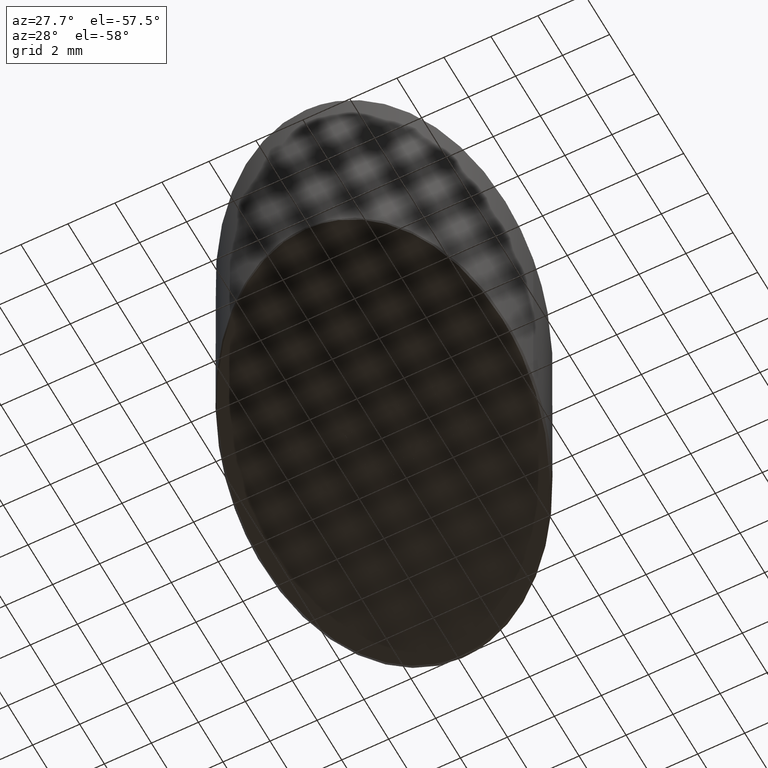
[diagram: clean part render]
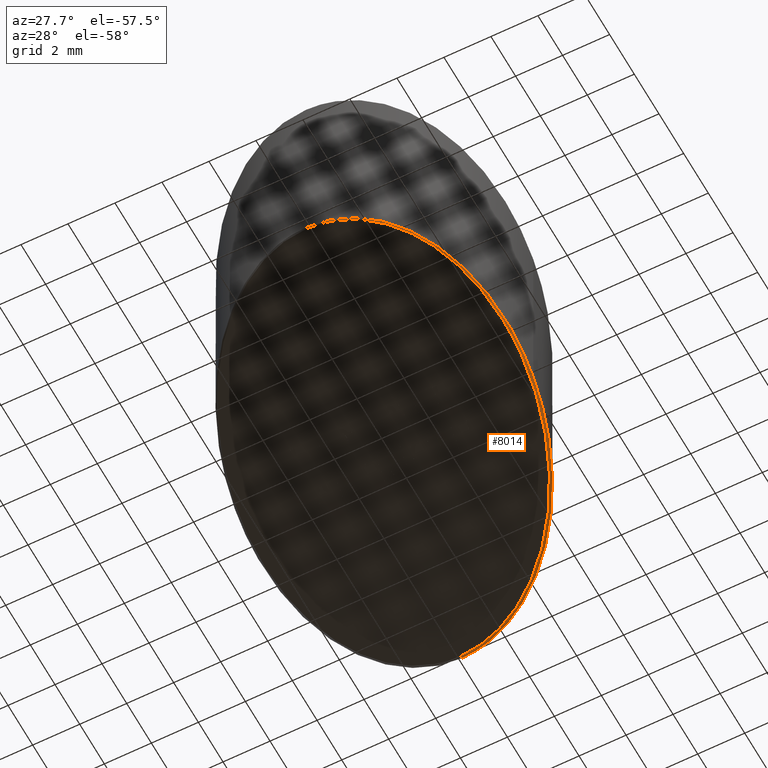
[diagram: same view with one face highlighted and labeled with its STEP entity id]
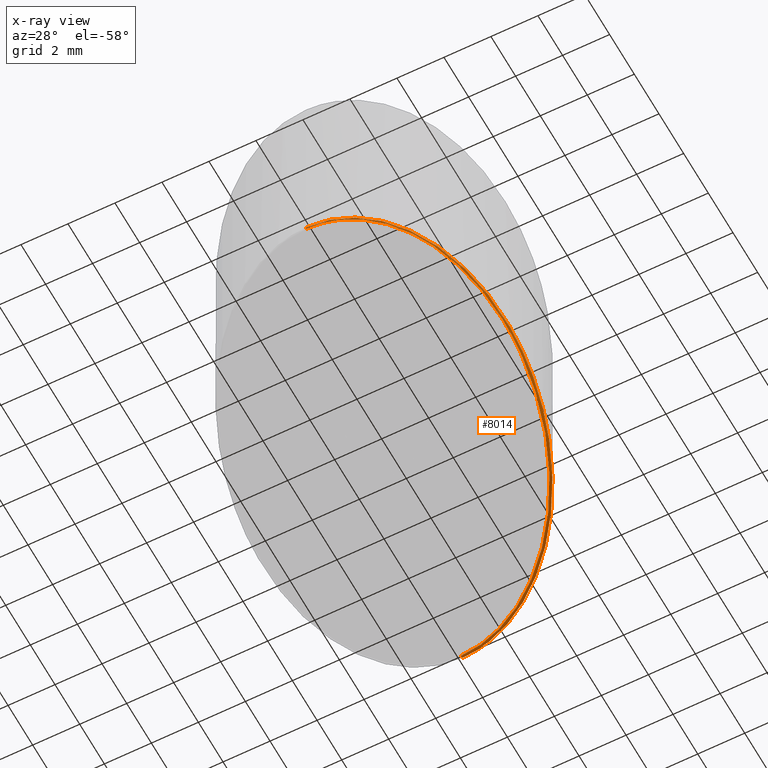
[diagram: x-ray of the same camera — body ghosted, the highlighted face saturated]
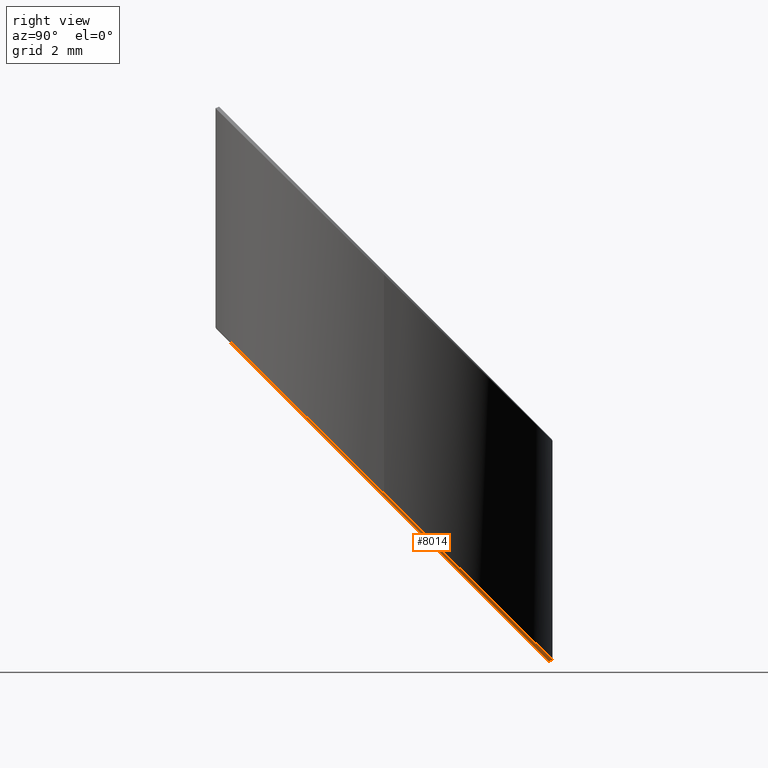
[diagram: same view with one face highlighted and labeled with its STEP entity id]
A machine part, auxiliary view. The second image highlights one B-rep face of the part: STEP entity #8014.
The next image is the same camera in x-ray: the body ghosted, the highlighted face saturated — about 0% of this face is hidden behind the body in this view.
A second angle (right view) of the same face is appended — the face is thin or edge-on in the first view.
In plain terms, the highlighted face is a freeform B-spline surface patch.
Its self-contained STEP definition (entity closure, byte-faithful):
#19 = CARTESIAN_POINT ( 'NONE',  ( 0.2223416782683677900, -0.1143668204986453400, -0.04954749645679985800 ) ) ;
#20 = CARTESIAN_POINT ( 'NONE',  ( 0.1939130182864091900, 0.1577936152862299300, -0.3181418424088710600 ) ) ;
#38 = CARTESIAN_POINT ( 'NONE',  ( 0.08811238369674552500, 0.2341007057328845800, -0.3934490907905976400 ) ) ;
#58 = CARTESIAN_POINT ( 'NONE',  ( 0.2370450236574142000, -0.07947957650088145800, -0.08397766531316383500 ) ) ;
#59 = CARTESIAN_POINT ( 'NONE',  ( 0.1455692265297764400, 0.2032578004067893700, -0.3630102338784608800 ) ) ;
#79 = CARTESIAN_POINT ( 'NONE',  ( 0.2124126530056838200, 0.1320901110168366800, -0.2927751327585876300 ) ) ;
#91 = CARTESIAN_POINT ( 'NONE',  ( 0.008086753559304946500, 0.2443319597931619700, -0.4113463567294711700 ) ) ;
#102 = CARTESIAN_POINT ( 'NONE',  ( 0.2447768522277455100, -0.05083865225638128900, -0.1122432812165127900 ) ) ;
#103 = CARTESIAN_POINT ( 'NONE',  ( 0.03268739277288631300, 0.2483958628721561800, -0.4075570286091403900 ) ) ;
#125 = CARTESIAN_POINT ( 'NONE',  ( 0.2495980828026762600, -0.01636244622850701100, -0.1462677375271077300 ) ) ;
#135 = CARTESIAN_POINT ( 'NONE',  ( 0.2141054907241900500, 0.1213813017996183300, -0.2884027120555117700 ) ) ;
#147 = CARTESIAN_POINT ( 'NONE',  ( 0.2486876141990224100, -0.02558405203329636200, -0.1371669669333660500 ) ) ;
#171 = CARTESIAN_POINT ( 'NONE',  ( 0.1880624936058601600, -0.1649225002360184300, 0.0003457459450414481000 ) ) ;
#180 = CARTESIAN_POINT ( 'NONE',  ( 0.1092939212964869200, -0.2241015315996629000, 0.05706041440148038000 ) ) ;
#187 = CARTESIAN_POINT ( 'NONE',  ( 0.2498706253331793600, -0.008073667333966626600, -0.1544479186296308900 ) ) ;
#210 = CARTESIAN_POINT ( 'NONE',  ( 0.05679661412277888000, -0.2436002405777688000, 0.07799257813209743700 ) ) ;
#250 = CARTESIAN_POINT ( 'NONE',  ( -0.1032293324857992100, -0.2278390605227590400, 0.06243791556190278500 ) ) ;
#296 = CARTESIAN_POINT ( 'NONE',  ( -0.2166237092033239100, -0.1250643882020248400, -0.03899010842689858100 ) ) ;
#335 = CARTESIAN_POINT ( 'NONE',  ( -0.2479942805334226000, 0.03264612393627235700, -0.1946341523069800800 ) ) ;
#380 = CARTESIAN_POINT ( 'NONE',  ( -0.1825617011459922700, 0.1709916894472816300, -0.3311669869104728000 ) ) ;
#427 = CARTESIAN_POINT ( 'NONE',  ( -0.04074854688528588300, 0.2467923996238464700, -0.4059744864290650800 ) ) ;
#541 = B_SPLINE_CURVE_WITH_KNOTS ( 'NONE', 3,
 ( #6288, #12763, #1981, #9567, #3071, #10661, #4160, #11728, #5249, #12812, #6335, #13905, #7442, #942, #8520, #2025, #9616, #3117, #10704, #4213, #11777, #5289, #12862, #6388, #13951, #7484, #999, #8567, #2070, #9666, #3161, #10750, #4257, #11828, #5336, #12903, #6430, #14003, #7532, #1037, #8624, #2117, #9708, #3209, #10801, #4304, #11871, #5389, #12954, #6471, #19, #7583, #1084, #8670, #2173, #9750, #3252, #10846, #4356, #11915, #5433, #13008, #6517, #58, #7630, #1136, #8716, #2216, #9808, #3297, #10890, #4406, #11969, #5475, #13051, #6571, #102, #7670, #1186, #8764, #2259, #9849, #3351, #10932, #4447, #12014, #5526, #13092, #6614, #147, #7713, #1225, #8810, #2302, #9890, #3388, #10980, #4485, #12057, #5572, #13136, #6651, #187, #7762, #1268, #8848, #2352, #9936, #3427, #11016 ),
 .UNSPECIFIED., .F., .F.,
 ( 4, 2, 2, 2, 2, 2, 2, 2, 1, 2, 2, 1, 2, 2, 1, 2, 2, 1, 1, 2, 2, 2, 1, 2, 2, 2, 1, 2, 2, 2, 1, 2, 2, 1, 2, 2, 1, 2, 2, 1, 1, 2, 2, 1, 1, 2, 2, 1, 1, 2, 2, 1, 1, 1, 2, 2, 2, 1, 1, 2, 2, 1, 1, 1, 2, 2, 4 ),
 ( 0.5000000000000000000, 0.5156250000000000000, 0.5312500000000001100, 0.5468750000000001100, 0.5546875000000001100, 0.5625000000000001100, 0.5703125000000002200, 0.5781250000000002200, 0.5859375000000002200, 0.5898437500000002200, 0.5937500000000001100, 0.6015625000000001100, 0.6054687500000000000, 0.6093750000000000000, 0.6171875000000000000, 0.6210937500000000000, 0.6250000000000000000, 0.6328124999999998900, 0.6367187499999998900, 0.6386718749999998900, 0.6406249999999998900, 0.6484374999999998900, 0.6523437499999998900, 0.6542968749999998900, 0.6562499999999998900, 0.6640625000000000000, 0.6679687500000000000, 0.6699218750000000000, 0.6718750000000000000, 0.6796875000000000000, 0.6835937500000000000, 0.6855468750000000000, 0.6875000000000000000, 0.6914062500000000000, 0.6933593750000000000, 0.6953125000000000000, 0.6992187500000000000, 0.7011718750000000000, 0.7031249999999998900, 0.7070312499999998900, 0.7089843749999998900, 0.7099609374999998900, 0.7109374999999998900, 0.7148437499999998900, 0.7167968749999998900, 0.7177734374999998900, 0.7187499999999998900, 0.7226562499999998900, 0.7246093749999998900, 0.7255859374999998900, 0.7265624999999998900, 0.7304687499999998900, 0.7324218749999997800, 0.7333984374999997800, 0.7338867187499997800, 0.7343749999999997800, 0.7382812499999997800, 0.7402343749999997800, 0.7412109374999997800, 0.7416992187499997800, 0.7421874999999997800, 0.7441406249999997800, 0.7451171874999997800, 0.7456054687499997800, 0.7458496093749997800, 0.7460937499999997800, 0.7500000000000000000 ),
 .UNSPECIFIED. ) ;
#633 = CARTESIAN_POINT ( 'NONE',  ( 0.1091905804154079800, 0.2191038107232405600, -0.3861196467170939200 ) ) ;
#637 = EDGE_LOOP ( 'NONE', ( #2126, #1128, #7069, #10154, #6243 ) ) ;
#682 = CARTESIAN_POINT ( 'NONE',  ( 0.2214100837836777700, 0.1068843073550539700, -0.2739065445447490500 ) ) ;
#728 = CARTESIAN_POINT ( 'NONE',  ( 0.2435725923056089300, -0.04252318903022248000, -0.1245075706231790800 ) ) ;
#778 = CARTESIAN_POINT ( 'NONE',  ( 0.1687608253936626300, -0.1824861605758677800, 0.01544741719089928100 ) ) ;
#835 = CARTESIAN_POINT ( 'NONE',  ( 0.03222020227573122600, -0.2470650657890164900, 0.08002263871086526300 ) ) ;
#854 = CARTESIAN_POINT ( 'NONE',  ( 0.2497210451207848600, 0.01180908989495714800, -0.1740701405427429700 ) ) ;
#877 = CARTESIAN_POINT ( 'NONE',  ( -0.1234327203186342500, -0.2161037744662618900, 0.04906311347407010100 ) ) ;
#895 = CARTESIAN_POINT ( 'NONE',  ( 0.2475706317967767400, 0.03477094359615235500, -0.1967311071907940600 ) ) ;
#918 = CARTESIAN_POINT ( 'NONE',  ( -0.2248665302684730000, -0.1041888113956433600, -0.06284546577221533600 ) ) ;
#942 = CARTESIAN_POINT ( 'NONE',  ( 0.1105434153052812500, -0.2242696735345107200, 0.05891521369462984800 ) ) ;
#943 = CARTESIAN_POINT ( 'NONE',  ( 0.2427464961914776200, 0.05978616990480096300, -0.2214185670680082800 ) ) ;
#967 = CARTESIAN_POINT ( 'NONE',  ( -0.2404220801542869300, 0.05374933706791711100, -0.2207746051688233300 ) ) ;
#999 = CARTESIAN_POINT ( 'NONE',  ( 0.1663281574844581700, -0.1867198321264836600, 0.02185731722760086600 ) ) ;
#1000 = CARTESIAN_POINT ( 'NONE',  ( 0.2336009041782088300, 0.08909498339762415800, -0.2503433299019479100 ) ) ;
#1019 = CARTESIAN_POINT ( 'NONE',  ( -0.1627708186040600400, 0.1833026401509657600, -0.3503205183059169800 ) ) ;
#1037 = CARTESIAN_POINT ( 'NONE',  ( 0.2037489043681806300, -0.1448926500429885700, -0.01942176661814097600 ) ) ;
#1038 = CARTESIAN_POINT ( 'NONE',  ( 0.2132936663267003300, 0.1304223722701445800, -0.2911290704508509000 ) ) ;
#1062 = CARTESIAN_POINT ( 'NONE',  ( -0.01614897156602657100, 0.2440353977342266100, -0.4110498115869518100 ) ) ;
#1084 = CARTESIAN_POINT ( 'NONE',  ( 0.2267822257260649600, -0.1052331002032634400, -0.05856176702099636500 ) ) ;
#1085 = CARTESIAN_POINT ( 'NONE',  ( 0.1865628848344501000, 0.1665037659802264500, -0.3267376887690081100 ) ) ;
#1105 = CARTESIAN_POINT ( 'NONE',  ( 0.1106339802107966000, 0.2243369229709486800, -0.3838132420952252700 ) ) ;
#1128 = ORIENTED_EDGE ( 'NONE', *, *, #12409, .F. ) ;
#1136 = CARTESIAN_POINT ( 'NONE',  ( 0.2386221765306954000, -0.07456895317928632900, -0.08882391508324100100 ) ) ;
#1137 = CARTESIAN_POINT ( 'NONE',  ( 0.1406096565381898500, 0.2067200746835345700, -0.3664272164666249100 ) ) ;
#1161 = CARTESIAN_POINT ( 'NONE',  ( 0.2243369229708530600, 0.1106339802109754200, -0.2716001399228797400 ) ) ;
#1176 = CARTESIAN_POINT ( 'NONE',  ( 0.02018059308498303100, 0.2436379754915958800, -0.4106524120139776700 ) ) ;
#1186 = CARTESIAN_POINT ( 'NONE',  ( 0.2451013115065508200, -0.04925022096203112600, -0.1138108892076631800 ) ) ;
#1187 = CARTESIAN_POINT ( 'NONE',  ( -1.539072138297795800E-017, 0.2500000000000001100, -0.4091400578733957500 ) ) ;
#1209 = CARTESIAN_POINT ( 'NONE',  ( 0.2467923996237721400, -0.04074854688565995200, -0.1222011660013131700 ) ) ;
#1218 = CARTESIAN_POINT ( 'NONE',  ( 0.2341217625657203400, 0.07723477059756694900, -0.2442586990484575700 ) ) ;
#1225 = CARTESIAN_POINT ( 'NONE',  ( 0.2487739124405283800, -0.02473038834381027400, -0.1380094400129440200 ) ) ;
#1232 = CARTESIAN_POINT ( 'NONE',  ( -1.539072138297795800E-017, 0.2500000000000001100, -0.4091400578733957500 ) ) ;
#1248 = CARTESIAN_POINT ( 'NONE',  ( 0.1709916894472821600, -0.1825617011459917400, 0.01775382181276785900 ) ) ;
#1260 = CARTESIAN_POINT ( 'NONE',  ( 0.06392193485472177900, -0.2411623475591053400, 0.07412025718227827100 ) ) ;
#1268 = CARTESIAN_POINT ( 'NONE',  ( 0.2499102716016337300, -0.006698942352078836000, -0.1558046233397187800 ) ) ;
#1291 = CARTESIAN_POINT ( 'NONE',  ( 0.03264612393668770600, -0.2479942805333816600, 0.08232904333273358100 ) ) ;
#1336 = CARTESIAN_POINT ( 'NONE',  ( -0.1250643882022024500, -0.2166237092032290100, 0.05136951809593857200 ) ) ;
#1366 = CARTESIAN_POINT ( 'NONE',  ( 8.262239488650609100E-016, 0.2444320712694875700, -0.4114464624952637300 ) ) ;
#1377 = CARTESIAN_POINT ( 'NONE',  ( -0.2278390605228616500, -0.1032293324855513700, -0.06053906115034583800 ) ) ;
#1417 = CARTESIAN_POINT ( 'NONE',  ( -0.2436002405778434900, 0.05679661412240363100, -0.2184682005469575100 ) ) ;
#1469 = CARTESIAN_POINT ( 'NONE',  ( -0.1649225002360698600, 0.1880624936058179500, -0.3480141136840487800 ) ) ;
#1517 = CARTESIAN_POINT ( 'NONE',  ( -0.01636244622809251600, 0.2495980828027170300, -0.4087434069650831600 ) ) ;
#1673 = CARTESIAN_POINT ( 'NONE',  ( 5.458360346715901400E-016, 0.2444320712694875700, -0.4114464624952637300 ) ) ;
#1687 = EDGE_CURVE ( 'NONE', #12153, #2794, #9844, .T. ) ;
#1720 = CARTESIAN_POINT ( 'NONE',  ( 0.1303667811785411700, 0.2073351122090194300, -0.3743516195099249000 ) ) ;
#1767 = CARTESIAN_POINT ( 'NONE',  ( 0.2310464821559827800, 0.08465654161294028400, -0.2516800467130910200 ) ) ;
#1793 = EDGE_CURVE ( 'NONE', #2943, #9699, #4797, .T. ) ;
#1822 = CARTESIAN_POINT ( 'NONE',  ( 0.2384577766022746800, -0.06620382254787385300, -0.1008282878900905500 ) ) ;
#1869 = CARTESIAN_POINT ( 'NONE',  ( 0.1502874785731835000, -0.1981599986740746900, 0.03112036122609351100 ) ) ;
#1892 = CARTESIAN_POINT ( 'NONE',  ( 0.2499890269380927200, 0.002555823058630899700, -0.1649380887160701300 ) ) ;
#1910 = CARTESIAN_POINT ( 'NONE',  ( 0.008074496261345688600, -0.2490446173905529200, 0.08200207739533195400 ) ) ;
#1933 = CARTESIAN_POINT ( 'NONE',  ( 0.2495873755207513900, 0.01453631975585638700, -0.1767616365978762800 ) ) ;
#1955 = CARTESIAN_POINT ( 'NONE',  ( -0.1437941777300593400, -0.2029757587914883800, 0.03593584664416604000 ) ) ;
#1981 = CARTESIAN_POINT ( 'NONE',  ( 0.01638314262150695000, -0.2495960443858851700, 0.08390977447512380800 ) ) ;
#1982 = CARTESIAN_POINT ( 'NONE',  ( 0.2473726905157508900, 0.03615298972297392700, -0.1980950588619649600 ) ) ;
#2007 = CARTESIAN_POINT ( 'NONE',  ( -0.2337699715200830000, -0.08165744487347338700, -0.08537554706601266400 ) ) ;
#2025 = CARTESIAN_POINT ( 'NONE',  ( 0.1214209869870680200, -0.2185711477254549400, 0.05329145924585363500 ) ) ;
#2026 = CARTESIAN_POINT ( 'NONE',  ( 0.2419961646979702200, 0.06278766068832714000, -0.2243807347727589100 ) ) ;
#2052 = CARTESIAN_POINT ( 'NONE',  ( -0.2337699715200832800, 0.07704489875240692900, -0.2440688380339179900 ) ) ;
#2070 = CARTESIAN_POINT ( 'NONE',  ( 0.1738280830776176800, -0.1796887408164887800, 0.01491846240501350700 ) ) ;
#2071 = CARTESIAN_POINT ( 'NONE',  ( 0.2317325270982650300, 0.09381396308390527200, -0.2550005050764904700 ) ) ;
#2092 = CARTESIAN_POINT ( 'NONE',  ( -0.1437941777300598400, 0.1983632126704226200, -0.3653802317440975100 ) ) ;
#2117 = CARTESIAN_POINT ( 'NONE',  ( 0.2067020117914584700, -0.1406248883579022400, -0.02363351343316403800 ) ) ;
#2118 = CARTESIAN_POINT ( 'NONE',  ( 0.2100629158658672800, 0.1355528494000485300, -0.2961924407500158300 ) ) ;
#2126 = ORIENTED_EDGE ( 'NONE', *, *, #1687, .F. ) ;
#2145 = CARTESIAN_POINT ( 'NONE',  ( 5.458360346715901400E-016, 0.2444320712694875700, -0.4114464624952637300 ) ) ;
#2173 = CARTESIAN_POINT ( 'NONE',  ( 0.2293279632553713600, -0.09954790935596688500, -0.06417231798603795200 ) ) ;
#2174 = CARTESIAN_POINT ( 'NONE',  ( 0.1796066712176742600, 0.1739124843635866100, -0.3340494635878815100 ) ) ;
#2195 = CARTESIAN_POINT ( 'NONE',  ( 0.1320901110167248000, 0.2124126530057585700, -0.3720452148880569200 ) ) ;
#2216 = CARTESIAN_POINT ( 'NONE',  ( 0.2398109979406079000, -0.07067263526436608200, -0.09266916737933086900 ) ) ;
#2217 = CARTESIAN_POINT ( 'NONE',  ( 0.1319837973396362200, 0.2123605669008295800, -0.3719937385389107700 ) ) ;
#2239 = CARTESIAN_POINT ( 'NONE',  ( 0.2341007057327815200, 0.08811238369699435400, -0.2493736420912216500 ) ) ;
#2248 = CARTESIAN_POINT ( 'NONE',  ( 0.04024226607530695400, 0.2412606285296708100, -0.4082752006600624000 ) ) ;
#2259 = CARTESIAN_POINT ( 'NONE',  ( 0.2461271723699526300, -0.04391791204506689800, -0.1190733853917348300 ) ) ;
#2282 = CARTESIAN_POINT ( 'NONE',  ( 0.2416099707260439300, -0.06474221676088010000, -0.09852188326822461400 ) ) ;
#2292 = CARTESIAN_POINT ( 'NONE',  ( 0.2451408663670782400, 0.03003152169854166400, -0.1970581427049284100 ) ) ;
#2302 = CARTESIAN_POINT ( 'NONE',  ( 0.2491440030884489500, -0.02077135067156036700, -0.1419166855230000200 ) ) ;
#2327 = CARTESIAN_POINT ( 'NONE',  ( 0.1522741418457527500, -0.1984427330755509100, 0.03342676584796160800 ) ) ;
#2343 = CARTESIAN_POINT ( 'NONE',  ( 0.01609333563993431800, -0.2490432552556051900, 0.08200071533808277200 ) ) ;
#2352 = CARTESIAN_POINT ( 'NONE',  ( 0.2499226135232438800, -0.006220491168796451500, -0.1562768042192347900 ) ) ;
#2369 = CARTESIAN_POINT ( 'NONE',  ( 0.008181233730880794700, -0.2500000000000000600, 0.08430848201719956500 ) ) ;
#2407 = CARTESIAN_POINT ( 'NONE',  ( -0.1456950054930762100, -0.2033221531455143800, 0.03824225126603387300 ) ) ;
#2454 = CARTESIAN_POINT ( 'NONE',  ( -0.2368601971400604600, -0.08040012186635234200, -0.08306914244414309600 ) ) ;
#2500 = CARTESIAN_POINT ( 'NONE',  ( -0.2368601971400607900, 0.08040012186635130100, -0.2417624334120521400 ) ) ;
#2542 = CARTESIAN_POINT ( 'NONE',  ( -0.1456950054930769000, 0.2033221531455139100, -0.3630738271222297400 ) ) ;
#2583 = CARTESIAN_POINT ( 'NONE',  ( -1.547335777661399100E-017, 0.2500000000000001100, -0.4091400578733957500 ) ) ;
#2744 = CARTESIAN_POINT ( 'NONE',  ( 0.008074496261346096300, 0.2444320712694875400, -0.4114464624952636200 ) ) ;
#2794 = VERTEX_POINT ( 'NONE', #6583 ) ;
#2799 = CARTESIAN_POINT ( 'NONE',  ( 0.1502874785731832300, 0.1935474525530097300, -0.3605647463260256400 ) ) ;
#2857 = CARTESIAN_POINT ( 'NONE',  ( 0.2384577766022745700, 0.06159127642680879700, -0.2286160972098414400 ) ) ;
#2907 = CARTESIAN_POINT ( 'NONE',  ( 0.2310464821559829200, -0.08926908773400592200, -0.07776433838684043700 ) ) ;
#2943 = VERTEX_POINT ( 'NONE', #1366 ) ;
#2949 = CARTESIAN_POINT ( 'NONE',  ( 0.1303667811785412800, -0.2119476583300846700, 0.04490723440999292600 ) ) ;
#2978 = CARTESIAN_POINT ( 'NONE',  ( 0.2499546688939769900, 0.004792714061995636900, -0.1671456827861532200 ) ) ;
#3004 = CARTESIAN_POINT ( 'NONE',  ( -0.01614897156602698400, -0.2486479438552919900, 0.08160542648702008600 ) ) ;
#3029 = CARTESIAN_POINT ( 'NONE',  ( 0.2492207342004537600, 0.01975022697341182300, -0.1819071440600691900 ) ) ;
#3050 = CARTESIAN_POINT ( 'NONE',  ( -0.1627708186040607600, -0.1879151862720305800, 0.02087613320598459900 ) ) ;
#3071 = CARTESIAN_POINT ( 'NONE',  ( 0.04078235764010849200, -0.2467856742465617500, 0.08113622911575345300 ) ) ;
#3072 = CARTESIAN_POINT ( 'NONE',  ( 0.2464782918051241200, 0.04190132152559793200, -0.2037680195739624000 ) ) ;
#3092 = CARTESIAN_POINT ( 'NONE',  ( -0.2404220801542867900, -0.05836188318898297800, -0.1086697799311079100 ) ) ;
#3117 = CARTESIAN_POINT ( 'NONE',  ( 0.1319740630401237700, -0.2123371648622302500, 0.04713906382963265600 ) ) ;
#3118 = CARTESIAN_POINT ( 'NONE',  ( 0.2403695769248804200, 0.06872759014227204600, -0.2302428221025925000 ) ) ;
#3137 = CARTESIAN_POINT ( 'NONE',  ( -0.2248665302684734500, 0.09957626527457694200, -0.2665989193277154000 ) ) ;
#3161 = CARTESIAN_POINT ( 'NONE',  ( 0.1796166402051064000, -0.1739367503881674400, 0.009241898807147068100 ) ) ;
#3162 = CARTESIAN_POINT ( 'NONE',  ( 0.2293504854504650500, 0.09958042992682265800, -0.2606914323847464600 ) ) ;
#3188 = CARTESIAN_POINT ( 'NONE',  ( -0.1234327203186355300, 0.2114912283451959000, -0.3785074985740012300 ) ) ;
#3209 = CARTESIAN_POINT ( 'NONE',  ( 0.2100777179110356300, -0.1355845883349371100, -0.02860774140953444400 ) ) ;
#3210 = CARTESIAN_POINT ( 'NONE',  ( 0.2084480311867115400, 0.1380235868778999500, -0.2986308595468464300 ) ) ;
#3230 = CARTESIAN_POINT ( 'NONE',  ( 0.008181233730881068800, 0.2500000000000001700, -0.4091400578733958000 ) ) ;
#3252 = CARTESIAN_POINT ( 'NONE',  ( 0.2305869987488678700, -0.09659522275176395100, -0.06708624679170552300 ) ) ;
#3253 = CARTESIAN_POINT ( 'NONE',  ( 0.1738416203044208500, 0.1797117702888531000, -0.3397728254650592100 ) ) ;
#3274 = CARTESIAN_POINT ( 'NONE',  ( 0.1522741418457524400, 0.1984427330755512400, -0.3582583417041580500 ) ) ;
#3281 = EDGE_CURVE ( 'NONE', #2794, #12421, #541, .T. ) ;
#3297 = CARTESIAN_POINT ( 'NONE',  ( 0.2415962538599231200, -0.06428949796402729000, -0.09896870062944913800 ) ) ;
#3298 = CARTESIAN_POINT ( 'NONE',  ( 0.1214842966155940500, 0.2185373080239949300, -0.3780895989307633300 ) ) ;
#3325 = CARTESIAN_POINT ( 'NONE',  ( 0.2416099707260438200, 0.06474221676088047500, -0.2263096925879720700 ) ) ;
#3340 = CARTESIAN_POINT ( 'NONE',  ( 0.07955045845575758900, 0.2318091311791907500, -0.3988242424394457000 ) ) ;
#3351 = CARTESIAN_POINT ( 'NONE',  ( 0.2469735746614617500, -0.03878574309169271300, -0.1241382718835308100 ) ) ;
#3371 = CARTESIAN_POINT ( 'NONE',  ( 0.2341007057327816300, -0.08811238369699439500, -0.07545793376497454700 ) ) ;
#3378 = CARTESIAN_POINT ( 'NONE',  ( 0.2467403439719387000, -0.03452262798230185800, -0.1325076753051688500 ) ) ;
#3388 = CARTESIAN_POINT ( 'NONE',  ( 0.2494826343897109700, -0.01613905698066895100, -0.1464882658110312800 ) ) ;
#3411 = CARTESIAN_POINT ( 'NONE',  ( 0.1320901110167249400, -0.2124126530057585900, 0.04721363903186055800 ) ) ;
#3427 = CARTESIAN_POINT ( 'NONE',  ( 0.2500000000000000000, -0.002726018069638891600, -0.1597254886557566100 ) ) ;
#3436 = FACE_OUTER_BOUND ( 'NONE', #637, .T. ) ;
#3450 = CARTESIAN_POINT ( 'NONE',  ( -0.01636244622809280400, -0.2495980828027169800, 0.08391183110888704400 ) ) ;
#3496 = CARTESIAN_POINT ( 'NONE',  ( -0.1649225002360705200, -0.1880624936058174200, 0.02318253782785187300 ) ) ;
#3538 = CARTESIAN_POINT ( 'NONE',  ( -0.2436002405778433800, -0.05679661412240418600, -0.1063633753092382600 ) ) ;
#3575 = CARTESIAN_POINT ( 'NONE',  ( -0.2278390605228621800, 0.1032293324855503000, -0.2642925147058494100 ) ) ;
#3626 = CARTESIAN_POINT ( 'NONE',  ( -0.1250643882022038400, 0.2166237092032282100, -0.3762010939521339700 ) ) ;
#3707 = CARTESIAN_POINT ( 'NONE',  ( 8.195543980992789700E-016, -0.2490446173905528900, 0.08200207739533196800 ) ) ;
#3842 = CARTESIAN_POINT ( 'NONE',  ( 0.03222020227573108000, 0.2424525196679513700, -0.4094670238107973000 ) ) ;
#3890 = CARTESIAN_POINT ( 'NONE',  ( 0.1687608253936629100, 0.1778736144548022600, -0.3448918022908308300 ) ) ;
#3938 = CARTESIAN_POINT ( 'NONE',  ( 0.2435725923056088200, 0.03791064290915753500, -0.2049368144767531000 ) ) ;
#3993 = CARTESIAN_POINT ( 'NONE',  ( 0.2214100837836780200, -0.1114968534761193700, -0.05553784055518262700 ) ) ;
#4050 = CARTESIAN_POINT ( 'NONE',  ( 0.1091905804154079500, -0.2237163568443059100, 0.05667526161716206200 ) ) ;
#4070 = CARTESIAN_POINT ( 'NONE',  ( 0.2499331683992323200, 0.005780963869266865200, -0.1681210012017511900 ) ) ;
#4090 = CARTESIAN_POINT ( 'NONE',  ( -0.04021691596931184500, -0.2458788653662161700, 0.07883650595100218100 ) ) ;
#4112 = CARTESIAN_POINT ( 'NONE',  ( 0.2489501389003586900, 0.02289565932444449400, -0.1850114278898181100 ) ) ;
#4133 = CARTESIAN_POINT ( 'NONE',  ( -0.1801798875153348700, -0.1710670984541948200, 0.004029006432409813600 ) ) ;
#4160 = CARTESIAN_POINT ( 'NONE',  ( 0.06478895529337437600, -0.2415957927472150700, 0.07601435137050342700 ) ) ;
#4161 = CARTESIAN_POINT ( 'NONE',  ( 0.2455723813343023100, 0.04684494450202556600, -0.2086469143265422800 ) ) ;
#4186 = CARTESIAN_POINT ( 'NONE',  ( -0.2447587927285249900, -0.03452647533584477700, -0.1325038281710856900 ) ) ;
#4213 = CARTESIAN_POINT ( 'NONE',  ( 0.1372127816177832500, -0.2089897939410340900, 0.04383562012389893200 ) ) ;
#4214 = CARTESIAN_POINT ( 'NONE',  ( 0.2395391694667983700, 0.07156873365112570400, -0.2330467604898991100 ) ) ;
#4233 = CARTESIAN_POINT ( 'NONE',  ( -0.2137975014058250700, 0.1211264472579223200, -0.2881478720511624300 ) ) ;
#4257 = CARTESIAN_POINT ( 'NONE',  ( 0.1885799220906569700, -0.1641495577649869900, -0.0004171657636249171500 ) ) ;
#4258 = CARTESIAN_POINT ( 'NONE',  ( 0.2250307201215193700, 0.1089282253837287300, -0.2699165178037029600 ) ) ;
#4280 = CARTESIAN_POINT ( 'NONE',  ( -0.1018825383353603600, 0.2225602572078371200, -0.3895758960399654500 ) ) ;
#4304 = CARTESIAN_POINT ( 'NONE',  ( 0.2153982946551508400, -0.1269163423019698800, -0.03716259635517282800 ) ) ;
#4305 = CARTESIAN_POINT ( 'NONE',  ( 0.2031601627766810600, 0.1457486926019727600, -0.3062546092103424200 ) ) ;
#4325 = CARTESIAN_POINT ( 'NONE',  ( 0.03264612393668734500, 0.2479942805333816800, -0.4071606191889298700 ) ) ;
#4356 = CARTESIAN_POINT ( 'NONE',  ( 0.2328637189492396000, -0.09100456919349141100, -0.07260367571475195800 ) ) ;
#4357 = CARTESIAN_POINT ( 'NONE',  ( 0.1647796033794685900, 0.1880207548356422100, -0.3479728283952299700 ) ) ;
#4380 = CARTESIAN_POINT ( 'NONE',  ( 0.1709916894472823200, 0.1825617011459916600, -0.3425853976689640100 ) ) ;
#4406 = CARTESIAN_POINT ( 'NONE',  ( 0.2422507273393695600, -0.06176454042418880900, -0.1014605608614967700 ) ) ;
#4407 = CARTESIAN_POINT ( 'NONE',  ( 0.1105446711974673500, 0.2242690544958794400, -0.3837461985864445400 ) ) ;
#4430 = CARTESIAN_POINT ( 'NONE',  ( 0.2467923996237720300, 0.04074854688566048600, -0.2026304098548834500 ) ) ;
#4439 = CARTESIAN_POINT ( 'NONE',  ( 0.1236925334861017500, 0.2117932814904161500, -0.3788095344895842700 ) ) ;
#4447 = CARTESIAN_POINT ( 'NONE',  ( 0.2472240787840541100, -0.03715484863909424000, -0.1257477855472991500 ) ) ;
#4468 = CARTESIAN_POINT ( 'NONE',  ( 0.2243369229708532500, -0.1106339802109751700, -0.05323143593331664000 ) ) ;
#4478 = CARTESIAN_POINT ( 'NONE',  ( 0.2156296883611186500, -0.1264937457176686100, -0.04054180376247588200 ) ) ;
#4485 = CARTESIAN_POINT ( 'NONE',  ( 0.2496411516260940200, -0.01339306294674640900, -0.1491982245067224900 ) ) ;
#4511 = CARTESIAN_POINT ( 'NONE',  ( 0.1106339802107966900, -0.2243369229709487000, 0.05898166623902916700 ) ) ;
#4560 = CARTESIAN_POINT ( 'NONE',  ( -0.04074854688528541100, -0.2467923996238465500, 0.08114291057286869600 ) ) ;
#4589 = CARTESIAN_POINT ( 'NONE',  ( -1.539072138297795800E-017, 0.2500000000000001100, -0.4091400578733957500 ) ) ;
#4594 = CARTESIAN_POINT ( 'NONE',  ( -0.1825617011459917900, -0.1709916894472820700, 0.006335411054276743700 ) ) ;
#4641 = CARTESIAN_POINT ( 'NONE',  ( -0.2479942805334226500, -0.03264612393627242000, -0.1301974235492159800 ) ) ;
#4694 = CARTESIAN_POINT ( 'NONE',  ( -0.2166237092033247400, 0.1250643882020232900, -0.2858414674292961700 ) ) ;
#4741 = CARTESIAN_POINT ( 'NONE',  ( -0.1032293324858003800, 0.2278390605227585400, -0.3872694914180984100 ) ) ;
#4797 = B_SPLINE_CURVE_WITH_KNOTS ( 'NONE', 1,
 ( #8817, #1232 ),
 .UNSPECIFIED., .F., .F.,
 ( 2, 2 ),
 ( 0.0000000000000000000, 1.000000000000000000 ),
 .UNSPECIFIED. ) ;
#4943 = CARTESIAN_POINT ( 'NONE',  ( 0.05605561012882793300, 0.2381158070936793000, -0.4051305586101604500 ) ) ;
#4993 = CARTESIAN_POINT ( 'NONE',  ( 0.1856089132115409400, 0.1604645455434765600, -0.3274837264231044200 ) ) ;
#5049 = CARTESIAN_POINT ( 'NONE',  ( 0.2463416707947186600, 0.01384269850591257800, -0.1808702429509582400 ) ) ;
#5094 = CARTESIAN_POINT ( 'NONE',  ( 0.2096413852694776800, -0.1326730542391853200, -0.03436284771947510600 ) ) ;
#5137 = CARTESIAN_POINT ( 'NONE',  ( 0.08696281467322396200, -0.2333527552166185000, 0.06631111031253490700 ) ) ;
#5163 = CARTESIAN_POINT ( 'NONE',  ( 0.2499281884148298300, 0.005993395267611743800, -0.1683306514185879100 ) ) ;
#5181 = CARTESIAN_POINT ( 'NONE',  ( -0.06389754948702253100, -0.2407640496629034600, 0.07372198200568190500 ) ) ;
#5206 = CARTESIAN_POINT ( 'NONE',  ( 0.2488406073472183300, 0.02405006088534156200, -0.1861507209079017500 ) ) ;
#5227 = CARTESIAN_POINT ( 'NONE',  ( -0.1958537256134994800, -0.1525937516337672600, -0.01444328663615371300 ) ) ;
#5249 = CARTESIAN_POINT ( 'NONE',  ( 0.08033627799389199400, -0.2367758762473914400, 0.07125757572053387200 ) ) ;
#5250 = CARTESIAN_POINT ( 'NONE',  ( 0.2452996667686019900, 0.04825302171965041600, -0.2100365535821320500 ) ) ;
#5273 = CARTESIAN_POINT ( 'NONE',  ( -0.2467383443300199300, -0.01038076932144548300, -0.1566481568723772100 ) ) ;
#5289 = CARTESIAN_POINT ( 'NONE',  ( 0.1472410859868301700, -0.2021123534736189700, 0.03704817107273535000 ) ) ;
#5290 = CARTESIAN_POINT ( 'NONE',  ( 0.2376876969424780700, 0.07753614471997402600, -0.2389359477839732800 ) ) ;
#5310 = CARTESIAN_POINT ( 'NONE',  ( -0.2006694857310302200, 0.1414879046694153000, -0.3085081680096760600 ) ) ;
#5336 = CARTESIAN_POINT ( 'NONE',  ( 0.1919279527743495100, -0.1602021705937943800, -0.004312749638067033500 ) ) ;
#5337 = CARTESIAN_POINT ( 'NONE',  ( 0.2223263702938313400, 0.1143327489878745900, -0.2752503742718723800 ) ) ;
#5364 = CARTESIAN_POINT ( 'NONE',  ( -0.07935117181325893100, 0.2314636984594536400, -0.3984788294237924200 ) ) ;
#5389 = CARTESIAN_POINT ( 'NONE',  ( 0.2184785088447720200, -0.1215246083990829000, -0.04248356586796983600 ) ) ;
#5390 = CARTESIAN_POINT ( 'NONE',  ( 0.1976532439737108400, 0.1531024004485567200, -0.3135119889633557500 ) ) ;
#5414 = CARTESIAN_POINT ( 'NONE',  ( 0.05679661412277846300, 0.2436002405777689400, -0.4028241539882937400 ) ) ;
#5433 = CARTESIAN_POINT ( 'NONE',  ( 0.2346777603770915100, -0.08618246548915325900, -0.07736259121744980300 ) ) ;
#5434 = CARTESIAN_POINT ( 'NONE',  ( 0.1601983743835114500, 0.1919394834982179600, -0.3518402948356386100 ) ) ;
#5455 = CARTESIAN_POINT ( 'NONE',  ( 0.1880624936058599700, 0.1649225002360187300, -0.3251773218012377600 ) ) ;
#5466 = CARTESIAN_POINT ( 'NONE',  ( 8.262239488650609100E-016, 0.2444320712694875700, -0.4114464624952637300 ) ) ;
#5475 = CARTESIAN_POINT ( 'NONE',  ( 0.2429866629746657800, -0.05883336991031959400, -0.1043533183437241900 ) ) ;
#5476 = CARTESIAN_POINT ( 'NONE',  ( 0.09947179220012945800, 0.2293954846702468100, -0.3888055008375155300 ) ) ;
#5499 = CARTESIAN_POINT ( 'NONE',  ( 0.2495980828026762000, 0.01636244622850717800, -0.1785638383290885100 ) ) ;
#5514 = CARTESIAN_POINT ( 'NONE',  ( 0.1630820075561010800, 0.1835508901457370000, -0.3505687541400763800 ) ) ;
#5526 = CARTESIAN_POINT ( 'NONE',  ( 0.2479771299694862000, -0.03185479263814922100, -0.1309784651461216900 ) ) ;
#5552 = CARTESIAN_POINT ( 'NONE',  ( 0.2124126530056839600, -0.1320901110168365100, -0.03205644309760882800 ) ) ;
#5564 = CARTESIAN_POINT ( 'NONE',  ( 0.1630835497014627200, -0.1881649784145920100, 0.02112591109996729900 ) ) ;
#5572 = CARTESIAN_POINT ( 'NONE',  ( 0.2496877162353937600, -0.01249383758748511700, -0.1500856591365544200 ) ) ;
#5591 = CARTESIAN_POINT ( 'NONE',  ( 0.08811238369674583000, -0.2341007057328846100, 0.06861751493440154700 ) ) ;
#5628 = CARTESIAN_POINT ( 'NONE',  ( -0.06474221676056359000, -0.2416099707261398800, 0.07602838662754821100 ) ) ;
#5672 = CARTESIAN_POINT ( 'NONE',  ( -0.1984427330755085300, -0.1522741418458042300, -0.01213688201428708000 ) ) ;
#5721 = CARTESIAN_POINT ( 'NONE',  ( -0.2500000000000002200, -0.008181233730452161900, -0.1543417522505075900 ) ) ;
#5760 = CARTESIAN_POINT ( 'NONE',  ( -0.2033221531455888000, 0.1456950054929648800, -0.3062017633878093600 ) ) ;
#5805 = CARTESIAN_POINT ( 'NONE',  ( -0.08040012186666915800, 0.2368601971399642300, -0.3961724248019256600 ) ) ;
#5965 = EDGE_CURVE ( 'NONE', #12421, #9699, #9399, .T. ) ;
#6021 = CARTESIAN_POINT ( 'NONE',  ( 0.07935117181325855600, 0.2314636984594541900, -0.3984788294237929800 ) ) ;
#6076 = CARTESIAN_POINT ( 'NONE',  ( 0.2006694857310311100, 0.1414879046694148800, -0.3085081680096757300 ) ) ;
#6122 = CARTESIAN_POINT ( 'NONE',  ( 0.2467383443300207600, -0.01038076932144575200, -0.1566481568723769000 ) ) ;
#6149 = B_SPLINE_CURVE_WITH_KNOTS ( 'NONE', 3,
 ( #5466, #11954, #91, #7662, #1176, #8752, #2248, #9839, #3340, #10920, #4439, #12007, #5514, #13082, #6605, #135, #7702, #1218, #8800, #2292, #9882, #3378, #10968, #4478, #12046, #5564, #13126, #6643, #180, #7749, #1260, #8842, #2343, #9923 ),
 .UNSPECIFIED., .F., .F.,
 ( 4, 2, 2, 2, 2, 2, 2, 2, 2, 2, 2, 2, 2, 2, 2, 2, 4 ),
 ( 0.0000000000000000000, 0.007812499999999998300, 0.01562499999999999700, 0.03124999999999998600, 0.06249999999999997200, 0.09374999999999995800, 0.1249999999999999300, 0.1562499999999999200, 0.1874999999999999400, 0.2187499999999999400, 0.2499999999999999400, 0.3125000000000000000, 0.3750000000000000000, 0.4062500000000000000, 0.4375000000000000000, 0.4687500000000000000, 0.5000000000000000000 ),
 .UNSPECIFIED. ) ;
#6166 = CARTESIAN_POINT ( 'NONE',  ( 0.1958537256135003100, -0.1525937516337670100, -0.01444328663615391700 ) ) ;
#6220 = CARTESIAN_POINT ( 'NONE',  ( 0.06389754948702332200, -0.2407640496629034600, 0.07372198200568187700 ) ) ;
#6243 = ORIENTED_EDGE ( 'NONE', *, *, #3281, .F. ) ;
#6245 = CARTESIAN_POINT ( 'NONE',  ( 0.2498455345701053300, 0.008888543400682744400, -0.1711878475299294400 ) ) ;
#6264 = CARTESIAN_POINT ( 'NONE',  ( -0.08696281467322250500, -0.2333527552166187700, 0.06631111031253512900 ) ) ;
#6288 = CARTESIAN_POINT ( 'NONE',  ( 1.528921213961874800E-017, -0.2500000000000001100, 0.08430848201719966200 ) ) ;
#6289 = CARTESIAN_POINT ( 'NONE',  ( 0.2485824939289879000, 0.02667389310682311300, -0.1887401763237002200 ) ) ;
#6310 = CARTESIAN_POINT ( 'NONE',  ( -0.2096413852694769000, -0.1326730542391853800, -0.03436284771947505100 ) ) ;
#6335 = CARTESIAN_POINT ( 'NONE',  ( 0.09192130506056393800, -0.2325229988459784100, 0.06706045987253682300 ) ) ;
#6336 = CARTESIAN_POINT ( 'NONE',  ( 0.2441340090151182800, 0.05390609934488826300, -0.2156155135011649000 ) ) ;
#6360 = CARTESIAN_POINT ( 'NONE',  ( -0.2463416707947178600, 0.01384269850591135200, -0.1808702429509569700 ) ) ;
#6388 = CARTESIAN_POINT ( 'NONE',  ( 0.1553860207116686000, -0.1958556081872235000, 0.03087349979144094300 ) ) ;
#6389 = CARTESIAN_POINT ( 'NONE',  ( 0.2360547626967395000, 0.08233571237018706700, -0.2436726353848266100 ) ) ;
#6411 = CARTESIAN_POINT ( 'NONE',  ( -0.1856089132115407200, 0.1604645455434758600, -0.3274837264231036900 ) ) ;
#6430 = CARTESIAN_POINT ( 'NONE',  ( 0.1957901146583650700, -0.1555063667391333700, -0.008946994668306333700 ) ) ;
#6431 = CARTESIAN_POINT ( 'NONE',  ( 0.2209754992522196800, 0.1169227616648064000, -0.2778065172356893900 ) ) ;
#6453 = CARTESIAN_POINT ( 'NONE',  ( -0.05605561012882707300, 0.2381158070936791000, -0.4051305586101603400 ) ) ;
#6471 = CARTESIAN_POINT ( 'NONE',  ( 0.2200149755417693000, -0.1187197751334627000, -0.04525159111093542100 ) ) ;
#6472 = CARTESIAN_POINT ( 'NONE',  ( 0.1945188000089730600, 0.1570460063514145500, -0.3174040157241107000 ) ) ;
#6488 = CARTESIAN_POINT ( 'NONE',  ( 0.08040012186666770100, 0.2368601971399647800, -0.3961724248019265500 ) ) ;
#6517 = CARTESIAN_POINT ( 'NONE',  ( 0.2360579763674504900, -0.08234446075707746400, -0.08115029598019127300 ) ) ;
#6518 = CARTESIAN_POINT ( 'NONE',  ( 0.1505287378360748400, 0.1996755837956750200, -0.3594749043626090900 ) ) ;
#6544 = CARTESIAN_POINT ( 'NONE',  ( 0.2033221531455889900, 0.1456950054929645200, -0.3062017633878094100 ) ) ;
#6559 = CARTESIAN_POINT ( 'NONE',  ( 0.2500000000000001100, 1.652727872720702100E-019, -0.1624157879280981000 ) ) ;
#6571 = CARTESIAN_POINT ( 'NONE',  ( 0.2444561654528893100, -0.05237447346747237800, -0.1107275971290119600 ) ) ;
#6572 = CARTESIAN_POINT ( 'NONE',  ( 0.06485776823517824800, 0.2419967773294591800, -0.4012416118082182700 ) ) ;
#6583 = CARTESIAN_POINT ( 'NONE',  ( 1.528921213961874800E-017, -0.2500000000000001100, 0.08430848201719966200 ) ) ;
#6595 = CARTESIAN_POINT ( 'NONE',  ( 0.2500000000000001100, -0.008181233730452344000, -0.1543417522505072200 ) ) ;
#6605 = CARTESIAN_POINT ( 'NONE',  ( 0.1962053802763196200, 0.1481671109879166600, -0.3151869933346209100 ) ) ;
#6614 = CARTESIAN_POINT ( 'NONE',  ( 0.2486044512741545600, -0.02638810615130069600, -0.1363734561698118600 ) ) ;
#6636 = CARTESIAN_POINT ( 'NONE',  ( 0.1984427330755088600, -0.1522741418458040700, -0.01213688201428721900 ) ) ;
#6643 = CARTESIAN_POINT ( 'NONE',  ( 0.1236938458122074100, -0.2164077916449660100, 0.04936711331110502100 ) ) ;
#6651 = CARTESIAN_POINT ( 'NONE',  ( 0.2498071386838134600, -0.009912050028475739500, -0.1526336322430514600 ) ) ;
#6672 = CARTESIAN_POINT ( 'NONE',  ( 0.06474221676056372800, -0.2416099707261398800, 0.07602838662754841900 ) ) ;
#6721 = CARTESIAN_POINT ( 'NONE',  ( -0.08811238369674503900, -0.2341007057328847700, 0.06861751493440161600 ) ) ;
#6763 = CARTESIAN_POINT ( 'NONE',  ( -0.2124126530056837900, -0.1320901110168367400, -0.03205644309760873100 ) ) ;
#6804 = CARTESIAN_POINT ( 'NONE',  ( -0.2495980828026764200, 0.01636244622850601500, -0.1785638383290873400 ) ) ;
#6850 = CARTESIAN_POINT ( 'NONE',  ( -0.1880624936058606100, 0.1649225002360179800, -0.3251773218012369800 ) ) ;
#6907 = CARTESIAN_POINT ( 'NONE',  ( -0.05679661412277895600, 0.2436002405777687700, -0.4028241539882936300 ) ) ;
#7069 = ORIENTED_EDGE ( 'NONE', *, *, #1793, .T. ) ;
#7109 = CARTESIAN_POINT ( 'NONE',  ( 0.1018825383353603900, 0.2225602572078374000, -0.3895758960399656700 ) ) ;
#7162 = CARTESIAN_POINT ( 'NONE',  ( 0.2137975014058255400, 0.1211264472579226100, -0.2881478720511627100 ) ) ;
#7215 = CARTESIAN_POINT ( 'NONE',  ( 0.2447587927285256600, -0.03452647533584541500, -0.1325038281710850500 ) ) ;
#7272 = CARTESIAN_POINT ( 'NONE',  ( 0.1801798875153352900, -0.1710670984541951300, 0.004029006432410110200 ) ) ;
#7298 = CARTESIAN_POINT ( 'NONE',  ( 0.2500000000000001100, 1.652727872720702100E-019, -0.1624157879280981000 ) ) ;
#7320 = CARTESIAN_POINT ( 'NONE',  ( 0.04021691596931324700, -0.2458788653662161100, 0.07883650595100215300 ) ) ;
#7343 = CARTESIAN_POINT ( 'NONE',  ( 0.2497427576107740500, 0.01134063496151879600, -0.1736078216185803800 ) ) ;
#7365 = CARTESIAN_POINT ( 'NONE',  ( -0.1091905804154068400, -0.2237163568443060200, 0.05667526161716220100 ) ) ;
#7391 = CARTESIAN_POINT ( 'NONE',  ( 0.2477738160768478400, 0.03331424562152807800, -0.1952934765723882700 ) ) ;
#7417 = CARTESIAN_POINT ( 'NONE',  ( -0.2214100837836768500, -0.1114968534761197900, -0.05553784055518216900 ) ) ;
#7442 = CARTESIAN_POINT ( 'NONE',  ( 0.1031469960343654500, -0.2277661747137149400, 0.06236592138818587700 ) ) ;
#7443 = CARTESIAN_POINT ( 'NONE',  ( 0.2429825305382691800, 0.05881953228600065400, -0.2204645896993459600 ) ) ;
#7465 = CARTESIAN_POINT ( 'NONE',  ( -0.2435725923056081800, 0.03791064290915700800, -0.2049368144767525500 ) ) ;
#7484 = CARTESIAN_POINT ( 'NONE',  ( 0.1617131474419855600, -0.1906963413762096400, 0.02578189173233085000 ) ) ;
#7485 = CARTESIAN_POINT ( 'NONE',  ( 0.2346823770361088400, 0.08618900333814064100, -0.2474754469812048800 ) ) ;
#7505 = CARTESIAN_POINT ( 'NONE',  ( -0.1687608253936626300, 0.1778736144548017100, -0.3448918022908302200 ) ) ;
#7532 = CARTESIAN_POINT ( 'NONE',  ( 0.2019400651384225300, -0.1473919718829614400, -0.01695522790127295500 ) ) ;
#7533 = CARTESIAN_POINT ( 'NONE',  ( 0.2164516727076655500, 0.1251615217096914700, -0.2859371593515734900 ) ) ;
#7554 = CARTESIAN_POINT ( 'NONE',  ( -0.03222020227572916500, 0.2424525196679513900, -0.4094670238107972500 ) ) ;
#7583 = CARTESIAN_POINT ( 'NONE',  ( 0.2241540554426084400, -0.1107776717721758200, -0.05308983570160830800 ) ) ;
#7584 = CARTESIAN_POINT ( 'NONE',  ( 0.1906109935577847100, 0.1618171440596375700, -0.3221126694723829300 ) ) ;
#7606 = CARTESIAN_POINT ( 'NONE',  ( 0.1032293324857994900, 0.2278390605227589600, -0.3872694914180986900 ) ) ;
#7630 = CARTESIAN_POINT ( 'NONE',  ( 0.2379963737971511900, -0.07654278522439328400, -0.08687595864237786200 ) ) ;
#7631 = CARTESIAN_POINT ( 'NONE',  ( 0.1422443886173317100, 0.2055983147926196700, -0.3653201243477562900 ) ) ;
#7649 = CARTESIAN_POINT ( 'NONE',  ( 0.2166237092033246000, 0.1250643882020235600, -0.2858414674292966700 ) ) ;
#7662 = CARTESIAN_POINT ( 'NONE',  ( 0.01612699404144692800, 0.2439376494522677000, -0.4109520688807251100 ) ) ;
#7670 = CARTESIAN_POINT ( 'NONE',  ( 0.2449883379173544400, -0.04980953959093576500, -0.1132589022240168300 ) ) ;
#7671 = CARTESIAN_POINT ( 'NONE',  ( 0.01634836905261502800, 0.2500000000000001100, -0.4091402387515724600 ) ) ;
#7692 = CARTESIAN_POINT ( 'NONE',  ( 0.2479942805334225400, -0.03264612393627307200, -0.1301974235492154600 ) ) ;
#7702 = CARTESIAN_POINT ( 'NONE',  ( 0.2217912498587377200, 0.1069980362899505700, -0.2740202669923493300 ) ) ;
#7713 = CARTESIAN_POINT ( 'NONE',  ( 0.2487423972877269900, -0.02504581733541263000, -0.1376981453243231200 ) ) ;
#7737 = CARTESIAN_POINT ( 'NONE',  ( 0.1825617011459917100, -0.1709916894472822400, 0.006335411054276900700 ) ) ;
#7749 = CARTESIAN_POINT ( 'NONE',  ( 0.07955143171209887200, -0.2364240269458581800, 0.06938220685108813200 ) ) ;
#7762 = CARTESIAN_POINT ( 'NONE',  ( 0.2498989462178748100, -0.007116983085690381300, -0.1553920619131568000 ) ) ;
#7783 = CARTESIAN_POINT ( 'NONE',  ( 0.04074854688528589000, -0.2467923996238465800, 0.08114291057286882000 ) ) ;
#7820 = CARTESIAN_POINT ( 'NONE',  ( -0.1106339802107964700, -0.2243369229709487900, 0.05898166623902923600 ) ) ;
#7860 = CARTESIAN_POINT ( 'NONE',  ( -0.2243369229708529200, -0.1106339802109758400, -0.05323143593331613300 ) ) ;
#7907 = CARTESIAN_POINT ( 'NONE',  ( -0.2467923996237721700, 0.04074854688566010400, -0.2026304098548829800 ) ) ;
#7955 = CARTESIAN_POINT ( 'NONE',  ( -0.1709916894472828000, 0.1825617011459911800, -0.3425853976689633400 ) ) ;
#7994 = CARTESIAN_POINT ( 'NONE',  ( -0.03264612393668651900, 0.2479942805333817700, -0.4071606191889299300 ) ) ;
#8014 = ADVANCED_FACE ( 'NONE', ( #3436 ), #9117, .T. ) ;
#8204 = CARTESIAN_POINT ( 'NONE',  ( 0.1234327203186350400, 0.2114912283451966000, -0.3785074985740018400 ) ) ;
#8268 = CARTESIAN_POINT ( 'NONE',  ( 0.2248665302684742000, 0.09957626527457719100, -0.2665989193277156200 ) ) ;
#8313 = CARTESIAN_POINT ( 'NONE',  ( 0.2404220801542875400, -0.05836188318898250000, -0.1086697799311084100 ) ) ;
#8358 = CARTESIAN_POINT ( 'NONE',  ( 0.1627708186040616500, -0.1879151862720305800, 0.02087613320598460600 ) ) ;
#8405 = CARTESIAN_POINT ( 'NONE',  ( 0.01614897156602826700, -0.2486479438552919300, 0.08160542648702008600 ) ) ;
#8430 = CARTESIAN_POINT ( 'NONE',  ( 0.2497128001176109900, 0.01198324343510369400, -0.1742420129479871600 ) ) ;
#8455 = CARTESIAN_POINT ( 'NONE',  ( -0.1303667811785401400, -0.2119476583300848300, 0.04490723440999305800 ) ) ;
#8474 = CARTESIAN_POINT ( 'NONE',  ( 0.2474335567339332200, 0.03573333526019398200, -0.1976808991345598000 ) ) ;
#8496 = CARTESIAN_POINT ( 'NONE',  ( -0.2310464821559820600, -0.08926908773400577000, -0.07776433838684063100 ) ) ;
#8520 = CARTESIAN_POINT ( 'NONE',  ( 0.1142773814259309400, -0.2223894844487228400, 0.05705972508911388900 ) ) ;
#8521 = CARTESIAN_POINT ( 'NONE',  ( 0.2426357254488033500, 0.06023439104768510400, -0.2218609174952044500 ) ) ;
#8544 = CARTESIAN_POINT ( 'NONE',  ( -0.2384577766022734900, 0.06159127642680974800, -0.2286160972098424400 ) ) ;
#8567 = CARTESIAN_POINT ( 'NONE',  ( 0.1708425447056222100, -0.1825296440613465900, 0.01772209120332164700 ) ) ;
#8568 = CARTESIAN_POINT ( 'NONE',  ( 0.2324843076284208400, 0.09193514285293905000, -0.2531462912203225600 ) ) ;
#8596 = CARTESIAN_POINT ( 'NONE',  ( -0.1502874785731821400, 0.1935474525530098100, -0.3605647463260257000 ) ) ;
#8624 = CARTESIAN_POINT ( 'NONE',  ( 0.2055252598041728600, -0.1423392022133607400, -0.02194169595749063300 ) ) ;
#8625 = CARTESIAN_POINT ( 'NONE',  ( 0.2116931192567108300, 0.1330155348220091700, -0.2936883000576002700 ) ) ;
#8647 = CARTESIAN_POINT ( 'NONE',  ( -0.008074496261344977400, 0.2444320712694876300, -0.4114464624952639000 ) ) ;
#8670 = CARTESIAN_POINT ( 'NONE',  ( 0.2280736985636703800, -0.1024206213450819700, -0.06133733829373429200 ) ) ;
#8671 = CARTESIAN_POINT ( 'NONE',  ( 0.1824029818000398600, 0.1709773692447712800, -0.3311527482962500200 ) ) ;
#8693 = CARTESIAN_POINT ( 'NONE',  ( 0.1250643882022025300, 0.2166237092032289000, -0.3762010939521349700 ) ) ;
#8716 = CARTESIAN_POINT ( 'NONE',  ( 0.2389471269292746400, -0.07352043633824025000, -0.08985868559461147900 ) ) ;
#8717 = CARTESIAN_POINT ( 'NONE',  ( 0.1354583616883226200, 0.2101620598598396000, -0.3698241300821806800 ) ) ;
#8740 = CARTESIAN_POINT ( 'NONE',  ( 0.2278390605228621500, 0.1032293324855504800, -0.2642925147058494100 ) ) ;
#8752 = CARTESIAN_POINT ( 'NONE',  ( 0.03219257459267439700, 0.2424559251200752700, -0.4094704290686682100 ) ) ;
#8764 = CARTESIAN_POINT ( 'NONE',  ( 0.2455763544778355500, -0.04686201867203469700, -0.1161677964457273500 ) ) ;
#8789 = CARTESIAN_POINT ( 'NONE',  ( 0.2436002405778435200, -0.05679661412240364500, -0.1063633753092388300 ) ) ;
#8800 = CARTESIAN_POINT ( 'NONE',  ( 0.2388538060928192300, 0.06162845827853337400, -0.2286532769406485800 ) ) ;
#8810 = CARTESIAN_POINT ( 'NONE',  ( 0.2489743354882166200, -0.02269545899102775500, -0.1400177047399023000 ) ) ;
#8817 = CARTESIAN_POINT ( 'NONE',  ( 8.262239488650609100E-016, 0.2444320712694875700, -0.4114464624952637300 ) ) ;
#8831 = CARTESIAN_POINT ( 'NONE',  ( 0.1649225002360706600, -0.1880624936058172800, 0.02318253782785195300 ) ) ;
#8842 = CARTESIAN_POINT ( 'NONE',  ( 0.03235059124342063600, -0.2474448710218554400, 0.08040242227895243200 ) ) ;
#8848 = CARTESIAN_POINT ( 'NONE',  ( 0.2499176324444334900, -0.006418463523917648100, -0.1560814261998189100 ) ) ;
#8871 = CARTESIAN_POINT ( 'NONE',  ( 0.01636244622809298800, -0.2495980828027169500, 0.08391183110888704400 ) ) ;
#8916 = CARTESIAN_POINT ( 'NONE',  ( -0.1320901110167245500, -0.2124126530057588200, 0.04721363903186071700 ) ) ;
#8961 = CARTESIAN_POINT ( 'NONE',  ( -0.2341007057327816900, -0.08811238369699435400, -0.07545793376497472700 ) ) ;
#8996 = CARTESIAN_POINT ( 'NONE',  ( -0.2416099707260435700, 0.06474221676088141900, -0.2263096925879726800 ) ) ;
#9042 = CARTESIAN_POINT ( 'NONE',  ( -0.1522741418457519700, 0.1984427330755515500, -0.3582583417041579900 ) ) ;
#9095 = CARTESIAN_POINT ( 'NONE',  ( -0.008181233730881072200, 0.2500000000000000600, -0.4091400578733956900 ) ) ;
#9117 = B_SPLINE_SURFACE_WITH_KNOTS ( 'NONE', 1, 3, ( 
 ( #1673, #2744, #10345, #3842, #11420, #4943, #12502, #6021, #13584, #7109, #633, #8204, #1720, #9306, #2799, #10393, #3890, #11477, #4993, #12552, #6076, #13641, #7162, #682, #8268, #1767, #9353, #2857, #10444, #3938, #11529, #5049, #12599, #6122, #13699, #7215, #728, #8313, #1822, #9395, #2907, #10502, #3993, #11570, #5094, #12650, #6166, #13746, #7272, #778, #8358, #1869, #9453, #2949, #10549, #4050, #11619, #5137, #12701, #6220, #13788, #7320, #835, #8405, #1910, #9502, #3004, #10583, #4090, #11670, #5181, #12740, #6264, #13837, #7365, #877, #8455, #1955, #9546, #3050, #10634, #4133, #11710, #5227, #12790, #6310, #13885, #7417, #918, #8496, #2007, #9592, #3092, #10680, #4186, #11752, #5273, #12838, #6360, #13928, #7465, #967, #8544, #2052, #9642, #3137, #10727, #4233, #11803, #5310, #12883, #6411, #13973, #7505, #1019, #8596, #2092, #9689, #3188, #10771, #4280, #11849, #5364, #12927, #6453, #14029, #7554, #1062, #8647, #2145 ),
 ( #9727, #3230, #10823, #4325, #11893, #5414, #12982, #6488, #38, #7606, #1105, #8693, #2195, #9779, #3274, #10866, #4380, #11940, #5455, #13029, #6544, #79, #7649, #1161, #8740, #2239, #9830, #3325, #10910, #4430, #11994, #5499, #13073, #6595, #125, #7692, #1209, #8789, #2282, #9873, #3371, #10956, #4468, #12035, #5552, #13114, #6636, #171, #7737, #1248, #8831, #2327, #9912, #3411, #11003, #4511, #12075, #5591, #13159, #6672, #210, #7783, #1291, #8871, #2369, #9958, #3450, #11039, #4560, #12114, #5628, #13201, #6721, #250, #7820, #1336, #8916, #2407, #9998, #3496, #11078, #4594, #12161, #5672, #13240, #6763, #296, #7860, #1377, #8961, #2454, #10038, #3538, #11129, #4641, #12201, #5721, #13287, #6804, #335, #7907, #1417, #8996, #2500, #10086, #3575, #11171, #4694, #12237, #5760, #13338, #6850, #380, #7955, #1469, #9042, #2542, #10137, #3626, #11214, #4741, #12294, #5805, #13381, #6907, #427, #7994, #1517, #9095, #2583 ) ),
 .UNSPECIFIED., .F., .T., .F.,
 ( 2, 2 ),
 ( 4, 2, 2, 2, 2, 2, 2, 2, 2, 2, 2, 2, 2, 2, 2, 2, 2, 2, 2, 2, 2, 2, 2, 2, 2, 2, 2, 2, 2, 2, 2, 2, 2, 2, 2, 2, 2, 2, 2, 2, 2, 2, 2, 2, 2, 2, 2, 2, 2, 2, 2, 2, 2, 2, 2, 2, 2, 2, 2, 2, 2, 2, 2, 2, 4 ),
 ( 0.0000000000000000000, 1.000000000000000000 ),
 ( 0.0000000000000000000, 0.09817477042468103500, 0.1963495408493620700, 0.2945243112740431000, 0.3926990816987241400, 0.4908738521234051700, 0.5890486225480862100, 0.6872233929727672400, 0.7853981633974482800, 0.8835729338221293100, 0.9817477042468103500, 1.079922474671491300, 1.178097245096172400, 1.276272015520853600, 1.374446785945534500, 1.472621556370215400, 1.570796326794896600, 1.668971097219577700, 1.767145867644258600, 1.865320638068939600, 1.963495408493620700, 2.061670178918301800, 2.159844949342982500, 2.258019719767663700, 2.356194490192344800, 2.454369260617026000, 2.552544031041707100, 2.650718801466387800, 2.748893571891069000, 2.847068342315750100, 2.945243112740430800, 3.043417883165112000, 3.141592653589793100, 3.239767424014474300, 3.337942194439155400, 3.436116964863836100, 3.534291735288517300, 3.632466505713198400, 3.730641276137879100, 3.828816046562560200, 3.926990816987241400, 4.025165587411923000, 4.123340357836603700, 4.221515128261284400, 4.319689898685965100, 4.417864669110645800, 4.516039439535327400, 4.614214209960009000, 4.712388980384689700, 4.810563750809370400, 4.908738521234052000, 5.006913291658733600, 5.105088062083414300, 5.203262832508095000, 5.301437602932775700, 5.399612373357456400, 5.497787143782138000, 5.595961914206819500, 5.694136684631500200, 5.792311455056180900, 5.890486225480861600, 5.988660995905542400, 6.086835766330223900, 6.185010536754905500, 6.283185307179586200 ),
 .UNSPECIFIED. ) ;
#9306 = CARTESIAN_POINT ( 'NONE',  ( 0.1437941777300604500, 0.1983632126704228700, -0.3653802317440975600 ) ) ;
#9353 = CARTESIAN_POINT ( 'NONE',  ( 0.2337699715200843300, 0.07704489875240661000, -0.2440688380339176800 ) ) ;
#9395 = CARTESIAN_POINT ( 'NONE',  ( 0.2337699715200842500, -0.08165744487347195700, -0.08537554706601407900 ) ) ;
#9399 = B_SPLINE_CURVE_WITH_KNOTS ( 'NONE', 3,
 ( #7298, #13766, #1892, #9482, #2978, #10566, #4070, #11649, #5163, #12722, #6245, #13811, #7343, #854, #8430, #1933, #9529, #3029, #10611, #4112, #11689, #5206, #12764, #6289, #13864, #7391, #895, #8474, #1982, #9568, #3072, #10662, #4161, #11729, #5250, #12813, #6336, #13906, #7443, #943, #8521, #2026, #9617, #3118, #10705, #4214, #11778, #5290, #12863, #6389, #13952, #7485, #1000, #8568, #2071, #9667, #3162, #10751, #4258, #11829, #5337, #12904, #6431, #14004, #7533, #1038, #8625, #2118, #9709, #3210, #10802, #4305, #11872, #5390, #12955, #6472, #20, #7584, #1085, #8671, #2174, #9751, #3253, #10847, #4357, #11916, #5434, #13009, #6518, #59, #7631, #1137, #8717, #2217, #9809, #3298, #10891, #4407, #11970, #5476, #13052, #6572, #103, #7671, #1187 ),
 .UNSPECIFIED., .F., .F.,
 ( 4, 2, 1, 1, 2, 2, 1, 1, 2, 2, 2, 1, 1, 2, 2, 1, 1, 2, 2, 1, 1, 2, 2, 1, 1, 2, 2, 1, 2, 2, 1, 2, 2, 1, 2, 2, 2, 1, 2, 2, 2, 1, 2, 2, 2, 1, 2, 2, 1, 2, 2, 1, 2, 2, 1, 2, 2, 2, 2, 2, 2, 2, 4 ),
 ( 0.7500000000000000000, 0.7519531249999998900, 0.7529296874999997800, 0.7534179687499997800, 0.7536621093749997800, 0.7539062499999997800, 0.7558593749999997800, 0.7568359374999997800, 0.7573242187499997800, 0.7578124999999997800, 0.7617187499999998900, 0.7636718749999998900, 0.7646484375000000000, 0.7651367187500000000, 0.7656250000000000000, 0.7695312500000000000, 0.7714843750000000000, 0.7724609375000000000, 0.7734375000000000000, 0.7773437500000001100, 0.7792968750000000000, 0.7802734375000000000, 0.7812500000000000000, 0.7851562500000000000, 0.7871093749999998900, 0.7880859374999998900, 0.7890624999999998900, 0.7929687499999998900, 0.7949218749999998900, 0.7968749999999998900, 0.8007812499999998900, 0.8027343749999998900, 0.8046874999999998900, 0.8085937499999998900, 0.8105468749999998900, 0.8124999999999998900, 0.8203125000000000000, 0.8242187500000000000, 0.8261718749999998900, 0.8281249999999998900, 0.8359374999999997800, 0.8398437499999996700, 0.8417968749999995600, 0.8437499999999995600, 0.8515624999999992200, 0.8554687499999991100, 0.8574218749999991100, 0.8593749999999991100, 0.8671874999999988900, 0.8710937499999987800, 0.8749999999999986700, 0.8828124999999986700, 0.8867187499999986700, 0.8906249999999986700, 0.8984374999999987800, 0.9023437499999988900, 0.9062499999999988900, 0.9140624999999990000, 0.9218749999999991100, 0.9296874999999991100, 0.9374999999999992200, 0.9687499999999995600, 1.000000000000000000 ),
 .UNSPECIFIED. ) ;
#9453 = CARTESIAN_POINT ( 'NONE',  ( 0.1437941777300606700, -0.2029757587914880800, 0.03593584664416574200 ) ) ;
#9482 = CARTESIAN_POINT ( 'NONE',  ( 0.2499670703209188300, 0.004089646735015034700, -0.1664518177172178400 ) ) ;
#9502 = CARTESIAN_POINT ( 'NONE',  ( -0.008074496261344595700, -0.2490446173905528600, 0.08200207739533202400 ) ) ;
#9529 = CARTESIAN_POINT ( 'NONE',  ( 0.2494505913717964300, 0.01669088817046894500, -0.1788878880133876500 ) ) ;
#9546 = CARTESIAN_POINT ( 'NONE',  ( -0.1502874785731822300, -0.1981599986740751100, 0.03112036122609385100 ) ) ;
#9567 = CARTESIAN_POINT ( 'NONE',  ( 0.03262542754327361200, -0.2479963189502134300, 0.08233109996649677600 ) ) ;
#9568 = CARTESIAN_POINT ( 'NONE',  ( 0.2469798753929744200, 0.03880113417729866300, -0.2007085064299828600 ) ) ;
#9592 = CARTESIAN_POINT ( 'NONE',  ( -0.2384577766022738000, -0.06620382254787469900, -0.1008282878900897300 ) ) ;
#9616 = CARTESIAN_POINT ( 'NONE',  ( 0.1267359690230337700, -0.2155628111462589700, 0.05032240367731388700 ) ) ;
#9617 = CARTESIAN_POINT ( 'NONE',  ( 0.2412010002549795100, 0.06579792315929430800, -0.2273515228954536600 ) ) ;
#9642 = CARTESIAN_POINT ( 'NONE',  ( -0.2310464821559821700, 0.08465654161293993700, -0.2516800467130905800 ) ) ;
#9666 = CARTESIAN_POINT ( 'NONE',  ( 0.1753567228424022200, -0.1781966677508717600, 0.01344597524671004500 ) ) ;
#9667 = CARTESIAN_POINT ( 'NONE',  ( 0.2313747325471610900, 0.09469346513238477400, -0.2558684899019828500 ) ) ;
#9689 = CARTESIAN_POINT ( 'NONE',  ( -0.1303667811785404200, 0.2073351122090193200, -0.3743516195099245700 ) ) ;
#9699 = VERTEX_POINT ( 'NONE', #4589 ) ;
#9708 = CARTESIAN_POINT ( 'NONE',  ( 0.2073148243667867500, -0.1397195507348912000, -0.02452697437636372100 ) ) ;
#9709 = CARTESIAN_POINT ( 'NONE',  ( 0.2089698128100943300, 0.1372319967669959600, -0.2978496258973296100 ) ) ;
#9727 = CARTESIAN_POINT ( 'NONE',  ( -1.547335777661399100E-017, 0.2500000000000001100, -0.4091400578733957500 ) ) ;
#9750 = CARTESIAN_POINT ( 'NONE',  ( 0.2301554979291169400, -0.09761940258473722500, -0.06607550631858830100 ) ) ;
#9751 = CARTESIAN_POINT ( 'NONE',  ( 0.1782442327927450700, 0.1753091578005288300, -0.3354278757020482900 ) ) ;
#9779 = CARTESIAN_POINT ( 'NONE',  ( 0.1456950054930766500, 0.2033221531455140800, -0.3630738271222301300 ) ) ;
#9808 = CARTESIAN_POINT ( 'NONE',  ( 0.2406543351696849600, -0.06777051237036456300, -0.09553330602785269100 ) ) ;
#9809 = CARTESIAN_POINT ( 'NONE',  ( 0.1249655209581351800, 0.2165648902899400000, -0.3761429542117563100 ) ) ;
#9830 = CARTESIAN_POINT ( 'NONE',  ( 0.2368601971400609000, 0.08040012186635102400, -0.2417624334120517500 ) ) ;
#9839 = CARTESIAN_POINT ( 'NONE',  ( 0.06392425699659927400, 0.2365519324489038500, -0.4035667731715175700 ) ) ;
#9844 = B_SPLINE_CURVE_WITH_KNOTS ( 'NONE', 1,
 ( #11685, #10520 ),
 .UNSPECIFIED., .F., .F.,
 ( 2, 2 ),
 ( 0.0000000000000000000, 1.000000000000000000 ),
 .UNSPECIFIED. ) ;
#9849 = CARTESIAN_POINT ( 'NONE',  ( 0.2467268290587714100, -0.04034595815359824600, -0.1225985146176553200 ) ) ;
#9873 = CARTESIAN_POINT ( 'NONE',  ( 0.2368601971400608500, -0.08040012186635085700, -0.08306914244414459500 ) ) ;
#9882 = CARTESIAN_POINT ( 'NONE',  ( 0.2467373445090625400, 0.01380190440035198400, -0.1808294511723645100 ) ) ;
#9890 = CARTESIAN_POINT ( 'NONE',  ( 0.2493738767644909100, -0.01771201310870913100, -0.1449359415696816800 ) ) ;
#9912 = CARTESIAN_POINT ( 'NONE',  ( 0.1456950054930769800, -0.2033221531455137200, 0.03824225126603347800 ) ) ;
#9923 = CARTESIAN_POINT ( 'NONE',  ( 8.195543980992789700E-016, -0.2490446173905528900, 0.08200207739533196800 ) ) ;
#9936 = CARTESIAN_POINT ( 'NONE',  ( 0.2499581630294869200, -0.004772364863100252200, -0.1577059551918698300 ) ) ;
#9958 = CARTESIAN_POINT ( 'NONE',  ( -0.008181233730880702700, -0.2500000000000001700, 0.08430848201719976000 ) ) ;
#9998 = CARTESIAN_POINT ( 'NONE',  ( -0.1522741418457521400, -0.1984427330755515200, 0.03342676584796196200 ) ) ;
#10038 = CARTESIAN_POINT ( 'NONE',  ( -0.2416099707260436800, -0.06474221676088105800, -0.09852188326822373900 ) ) ;
#10086 = CARTESIAN_POINT ( 'NONE',  ( -0.2341007057327817700, 0.08811238369699395100, -0.2493736420912210900 ) ) ;
#10137 = CARTESIAN_POINT ( 'NONE',  ( -0.1320901110167247400, 0.2124126530057586800, -0.3720452148880568100 ) ) ;
#10154 = ORIENTED_EDGE ( 'NONE', *, *, #5965, .F. ) ;
#10345 = CARTESIAN_POINT ( 'NONE',  ( 0.01614897156602813600, 0.2440353977342265300, -0.4110498115869517500 ) ) ;
#10393 = CARTESIAN_POINT ( 'NONE',  ( 0.1627708186040616700, 0.1833026401509652000, -0.3503205183059163700 ) ) ;
#10444 = CARTESIAN_POINT ( 'NONE',  ( 0.2404220801542876200, 0.05374933706791745100, -0.2207746051688236600 ) ) ;
#10502 = CARTESIAN_POINT ( 'NONE',  ( 0.2248665302684740600, -0.1041888113956426500, -0.06284546577221604400 ) ) ;
#10520 = CARTESIAN_POINT ( 'NONE',  ( 1.528921213961874800E-017, -0.2500000000000001100, 0.08430848201719966200 ) ) ;
#10549 = CARTESIAN_POINT ( 'NONE',  ( 0.1234327203186350400, -0.2161037744662618100, 0.04906311347407003200 ) ) ;
#10566 = CARTESIAN_POINT ( 'NONE',  ( 0.2499395918182686900, 0.005501244336298714300, -0.1678449430278767500 ) ) ;
#10583 = CARTESIAN_POINT ( 'NONE',  ( -0.03222020227572977600, -0.2470650657890164900, 0.08002263871086531800 ) ) ;
#10611 = CARTESIAN_POINT ( 'NONE',  ( 0.2490996135049924100, 0.02123677754385158700, -0.1833742418142636200 ) ) ;
#10634 = CARTESIAN_POINT ( 'NONE',  ( -0.1687608253936620000, -0.1824861605758675000, 0.01544741719089899800 ) ) ;
#10661 = CARTESIAN_POINT ( 'NONE',  ( 0.05676280336795617300, -0.2436069659550533800, 0.07799925958921274900 ) ) ;
#10662 = CARTESIAN_POINT ( 'NONE',  ( 0.2458499360355593000, 0.04538224030039139700, -0.2072033596843992600 ) ) ;
#10680 = CARTESIAN_POINT ( 'NONE',  ( -0.2435725923056080400, -0.04252318903022294500, -0.1245075706231785800 ) ) ;
#10704 = CARTESIAN_POINT ( 'NONE',  ( 0.1354475824152669400, -0.2101384717630447900, 0.04496921853581353800 ) ) ;
#10705 = CARTESIAN_POINT ( 'NONE',  ( 0.2398078055438221900, 0.07066280179887088300, -0.2321526907038948000 ) ) ;
#10727 = CARTESIAN_POINT ( 'NONE',  ( -0.2214100837836776900, 0.1068843073550526400, -0.2739065445447477200 ) ) ;
#10750 = CARTESIAN_POINT ( 'NONE',  ( 0.1838133546184866900, -0.1695347021281487200, 0.004897337528847437900 ) ) ;
#10751 = CARTESIAN_POINT ( 'NONE',  ( 0.2276588594614025700, 0.1033836391474262900, -0.2644445864843146800 ) ) ;
#10771 = CARTESIAN_POINT ( 'NONE',  ( -0.1091905804154075100, 0.2191038107232402800, -0.3861196467170935900 ) ) ;
#10801 = CARTESIAN_POINT ( 'NONE',  ( 0.2122402588743762800, -0.1321771752140649400, -0.03197068525589522700 ) ) ;
#10802 = CARTESIAN_POINT ( 'NONE',  ( 0.2055448906313360200, 0.1423684437629027800, -0.3029188021786069500 ) ) ;
#10823 = CARTESIAN_POINT ( 'NONE',  ( 0.01636244622809299500, 0.2495980828027169800, -0.4087434069650832100 ) ) ;
#10846 = CARTESIAN_POINT ( 'NONE',  ( 0.2317356518857298700, -0.09382212877028937900, -0.06982299878957069800 ) ) ;
#10847 = CARTESIAN_POINT ( 'NONE',  ( 0.1693613146994308600, 0.1839727511127214600, -0.3439778047721125900 ) ) ;
#10866 = CARTESIAN_POINT ( 'NONE',  ( 0.1649225002360704100, 0.1880624936058175000, -0.3480141136840482200 ) ) ;
#10890 = CARTESIAN_POINT ( 'NONE',  ( 0.2419902710696722200, -0.06277724156006984900, -0.1004611339254875400 ) ) ;
#10891 = CARTESIAN_POINT ( 'NONE',  ( 0.1142140717974050200, 0.2224233241501827300, -0.3819247371165968600 ) ) ;
#10910 = CARTESIAN_POINT ( 'NONE',  ( 0.2436002405778434100, 0.05679661412240408200, -0.2184682005469578400 ) ) ;
#10920 = CARTESIAN_POINT ( 'NONE',  ( 0.1092948945528276200, 0.2194913351241997700, -0.3865071490129866600 ) ) ;
#10932 = CARTESIAN_POINT ( 'NONE',  ( 0.2471356767641559000, -0.03773907416137903300, -0.1251712184158087200 ) ) ;
#10956 = CARTESIAN_POINT ( 'NONE',  ( 0.2278390605228620400, -0.1032293324855505100, -0.06053906115034656700 ) ) ;
#10968 = CARTESIAN_POINT ( 'NONE',  ( 0.2402833240633395500, -0.06696415341197985100, -0.1000680003965808000 ) ) ;
#10980 = CARTESIAN_POINT ( 'NONE',  ( 0.2495958673306441200, -0.01422821407523545600, -0.1483740291407877100 ) ) ;
#11003 = CARTESIAN_POINT ( 'NONE',  ( 0.1250643882022023100, -0.2166237092032289600, 0.05136951809593836400 ) ) ;
#11016 = CARTESIAN_POINT ( 'NONE',  ( 0.2500000000000001100, 1.652727872720702100E-019, -0.1624157879280981000 ) ) ;
#11039 = CARTESIAN_POINT ( 'NONE',  ( -0.03264612393668726200, -0.2479942805333816800, 0.08232904333273385900 ) ) ;
#11078 = CARTESIAN_POINT ( 'NONE',  ( -0.1709916894472823800, -0.1825617011459916000, 0.01775382181276744300 ) ) ;
#11129 = CARTESIAN_POINT ( 'NONE',  ( -0.2467923996237720000, -0.04074854688566065900, -0.1222011660013126400 ) ) ;
#11171 = CARTESIAN_POINT ( 'NONE',  ( -0.2243369229708538600, 0.1106339802109740500, -0.2716001399228785700 ) ) ;
#11214 = CARTESIAN_POINT ( 'NONE',  ( -0.1106339802107969100, 0.2243369229709484800, -0.3838132420952252200 ) ) ;
#11420 = CARTESIAN_POINT ( 'NONE',  ( 0.04021691596931310800, 0.2412663192451508200, -0.4082808910509339600 ) ) ;
#11477 = CARTESIAN_POINT ( 'NONE',  ( 0.1801798875153355600, 0.1664545523331296100, -0.3334733915323416800 ) ) ;
#11529 = CARTESIAN_POINT ( 'NONE',  ( 0.2447587927285254600, 0.02991392921478035200, -0.1969405569288470200 ) ) ;
#11570 = CARTESIAN_POINT ( 'NONE',  ( 0.2137975014058255400, -0.1257389933789876700, -0.04129651304876938400 ) ) ;
#11619 = CARTESIAN_POINT ( 'NONE',  ( 0.1018825383353607600, -0.2271728033289025500, 0.06013151094003371700 ) ) ;
#11649 = CARTESIAN_POINT ( 'NONE',  ( 0.2499289124507522200, 0.005962124665004378000, -0.1682997900316974300 ) ) ;
#11670 = CARTESIAN_POINT ( 'NONE',  ( -0.05605561012882670500, -0.2427283532147446500, 0.07568617351022873000 ) ) ;
#11685 = CARTESIAN_POINT ( 'NONE',  ( 8.195543980992789700E-016, -0.2490446173905528900, 0.08200207739533196800 ) ) ;
#11689 = CARTESIAN_POINT ( 'NONE',  ( 0.2488845993406940700, 0.02359045367396110300, -0.1856971302141255700 ) ) ;
#11710 = CARTESIAN_POINT ( 'NONE',  ( -0.1856089132115401900, -0.1650770916645418500, -0.001960658676827456600 ) ) ;
#11728 = CARTESIAN_POINT ( 'NONE',  ( 0.07646227632373647800, -0.2380547295259709300, 0.07251975099470719900 ) ) ;
#11729 = CARTESIAN_POINT ( 'NONE',  ( 0.2453856184522072400, 0.04781361266862825500, -0.2096028987598340900 ) ) ;
#11752 = CARTESIAN_POINT ( 'NONE',  ( -0.2463416707947177500, -0.01845524462697735100, -0.1485741421489740800 ) ) ;
#11777 = CARTESIAN_POINT ( 'NONE',  ( 0.1422521115291362200, -0.2056226213448404100, 0.04051259519904323200 ) ) ;
#11778 = CARTESIAN_POINT ( 'NONE',  ( 0.2386269128655600900, 0.07457604063859557500, -0.2360146680202373200 ) ) ;
#11803 = CARTESIAN_POINT ( 'NONE',  ( -0.2096413852694770400, 0.1280605081181195900, -0.2950815373804563400 ) ) ;
#11828 = CARTESIAN_POINT ( 'NONE',  ( 0.1905928644372973700, -0.1617882398220037700, -0.002747491846353252600 ) ) ;
#11829 = CARTESIAN_POINT ( 'NONE',  ( 0.2236939633010952000, 0.1116604835089061200, -0.2726130335059057700 ) ) ;
#11849 = CARTESIAN_POINT ( 'NONE',  ( -0.08696281467322274100, 0.2287402090955532000, -0.3957554954124666800 ) ) ;
#11871 = CARTESIAN_POINT ( 'NONE',  ( 0.2169558587017143800, -0.1242485130133086200, -0.03979542573724578100 ) ) ;
#11872 = CARTESIAN_POINT ( 'NONE',  ( 0.1995023428238730800, 0.1506751422479628000, -0.3111164991474363900 ) ) ;
#11893 = CARTESIAN_POINT ( 'NONE',  ( 0.04074854688528567500, 0.2467923996238464400, -0.4059744864290649700 ) ) ;
#11915 = CARTESIAN_POINT ( 'NONE',  ( 0.2339570409548577300, -0.08812021085451234000, -0.07545024003090741700 ) ) ;
#11916 = CARTESIAN_POINT ( 'NONE',  ( 0.1617042295217049900, 0.1906721376962335600, -0.3505895206586559000 ) ) ;
#11940 = CARTESIAN_POINT ( 'NONE',  ( 0.1825617011459916000, 0.1709916894472823200, -0.3311669869104731900 ) ) ;
#11954 = CARTESIAN_POINT ( 'NONE',  ( 0.004065366776729233000, 0.2444313830876591300, -0.4114457743526904200 ) ) ;
#11969 = CARTESIAN_POINT ( 'NONE',  ( 0.2423881008796295000, -0.06122296374218651900, -0.1019950390459206200 ) ) ;
#11970 = CARTESIAN_POINT ( 'NONE',  ( 0.1031482715068206500, 0.2277655970944407500, -0.3871969062800003100 ) ) ;
#11994 = CARTESIAN_POINT ( 'NONE',  ( 0.2479942805334225100, 0.03264612393627324600, -0.1946341523069810000 ) ) ;
#12007 = CARTESIAN_POINT ( 'NONE',  ( 0.1504684254225010800, 0.1939050433890264500, -0.3609223167644388100 ) ) ;
#12014 = CARTESIAN_POINT ( 'NONE',  ( 0.2475743223197617900, -0.03479369851281604400, -0.1280779952139433900 ) ) ;
#12035 = CARTESIAN_POINT ( 'NONE',  ( 0.2166237092033247400, -0.1250643882020233100, -0.03899010842690001800 ) ) ;
#12046 = CARTESIAN_POINT ( 'NONE',  ( 0.1972439699605730600, -0.1539999317159103100, -0.01303718676497065200 ) ) ;
#12057 = CARTESIAN_POINT ( 'NONE',  ( 0.2496705844115663100, -0.01283269262021668700, -0.1497512461021797400 ) ) ;
#12075 = CARTESIAN_POINT ( 'NONE',  ( 0.1032293324857998200, -0.2278390605227587400, 0.06243791556190258400 ) ) ;
#12114 = CARTESIAN_POINT ( 'NONE',  ( -0.05679661412277830400, -0.2436002405777689100, 0.07799257813209754800 ) ) ;
#12153 = VERTEX_POINT ( 'NONE', #3707 ) ;
#12161 = CARTESIAN_POINT ( 'NONE',  ( -0.1880624936058601600, -0.1649225002360185100, 0.0003457459450413670000 ) ) ;
#12201 = CARTESIAN_POINT ( 'NONE',  ( -0.2495980828026762600, -0.01636244622850661600, -0.1462677375271082300 ) ) ;
#12237 = CARTESIAN_POINT ( 'NONE',  ( -0.2124126530056841800, 0.1320901110168361300, -0.2927751327585870800 ) ) ;
#12294 = CARTESIAN_POINT ( 'NONE',  ( -0.08811238369674531700, 0.2341007057328847700, -0.3934490907905978700 ) ) ;
#12409 = EDGE_CURVE ( 'NONE', #2943, #12153, #6149, .T. ) ;
#12421 = VERTEX_POINT ( 'NONE', #6559 ) ;
#12502 = CARTESIAN_POINT ( 'NONE',  ( 0.06389754948702332200, 0.2361515035418382300, -0.4031663671056136500 ) ) ;
#12552 = CARTESIAN_POINT ( 'NONE',  ( 0.1958537256135001200, 0.1479812055127020800, -0.3150010984637781100 ) ) ;
#12599 = CARTESIAN_POINT ( 'NONE',  ( 0.2467383443300206800, 0.005768223200380464200, -0.1727962282275548900 ) ) ;
#12650 = CARTESIAN_POINT ( 'NONE',  ( 0.2006694857310312200, -0.1461004507904801500, -0.02093621709025614300 ) ) ;
#12701 = CARTESIAN_POINT ( 'NONE',  ( 0.07935117181325859700, -0.2360762445805195700, 0.06903444432386117400 ) ) ;
#12722 = CARTESIAN_POINT ( 'NONE',  ( 0.2498968347173913800, 0.007270603275257941100, -0.1695911240454963900 ) ) ;
#12740 = CARTESIAN_POINT ( 'NONE',  ( -0.07935117181325747300, -0.2360762445805196800, 0.06903444432386128500 ) ) ;
#12763 = CARTESIAN_POINT ( 'NONE',  ( 0.008173719956214768300, -0.2500000000000001100, 0.08430852723400131300 ) ) ;
#12764 = CARTESIAN_POINT ( 'NONE',  ( 0.2488228926354320000, 0.02423308407933603300, -0.1863313476923266200 ) ) ;
#12790 = CARTESIAN_POINT ( 'NONE',  ( -0.2006694857310300800, -0.1461004507904806200, -0.02093621709025564700 ) ) ;
#12812 = CARTESIAN_POINT ( 'NONE',  ( 0.08803967110598803800, -0.2340208312227383100, 0.06853860820770471500 ) ) ;
#12813 = CARTESIAN_POINT ( 'NONE',  ( 0.2447829334296305600, 0.05085081564155942400, -0.2126003116760747700 ) ) ;
#12838 = CARTESIAN_POINT ( 'NONE',  ( -0.2467383443300198700, 0.005768223200380911800, -0.1727962282275553300 ) ) ;
#12862 = CARTESIAN_POINT ( 'NONE',  ( 0.1521408736809951000, -0.1983869684394058400, 0.03337164814424907500 ) ) ;
#12863 = CARTESIAN_POINT ( 'NONE',  ( 0.2367124537559394100, 0.08042533655610281700, -0.2417872858978057100 ) ) ;
#12883 = CARTESIAN_POINT ( 'NONE',  ( -0.1958537256135000300, 0.1479812055127010000, -0.3150010984637770500 ) ) ;
#12903 = CARTESIAN_POINT ( 'NONE',  ( 0.1926182380112643500, -0.1593713096163556800, -0.005132711376202019900 ) ) ;
#12904 = CARTESIAN_POINT ( 'NONE',  ( 0.2214081359233952600, 0.1161009464478283400, -0.2769954514633530800 ) ) ;
#12927 = CARTESIAN_POINT ( 'NONE',  ( -0.06389754948702315600, 0.2361515035418379200, -0.4031663671056134900 ) ) ;
#12954 = CARTESIAN_POINT ( 'NONE',  ( 0.2194855408966951100, -0.1196962263852574400, -0.04428795056593059400 ) ) ;
#12955 = CARTESIAN_POINT ( 'NONE',  ( 0.1957761587845262000, 0.1554757451161927200, -0.3158542960503339900 ) ) ;
#12982 = CARTESIAN_POINT ( 'NONE',  ( 0.06474221676056357600, 0.2416099707261398500, -0.4008599624837447800 ) ) ;
#13008 = CARTESIAN_POINT ( 'NONE',  ( 0.2350500362599098300, -0.08516146464353796500, -0.07837020931137991800 ) ) ;
#13009 = CARTESIAN_POINT ( 'NONE',  ( 0.1553982143557112200, 0.1958788730256171600, -0.3557280934110324500 ) ) ;
#13029 = CARTESIAN_POINT ( 'NONE',  ( 0.1984427330755086400, 0.1522741418458043400, -0.3126946938419092300 ) ) ;
#13051 = CARTESIAN_POINT ( 'NONE',  ( 0.2436846347541654400, -0.05590309797912599400, -0.1072452328911306700 ) ) ;
#13052 = CARTESIAN_POINT ( 'NONE',  ( 0.08046712165584538100, 0.2372674769581217000, -0.3965744521716791900 ) ) ;
#13073 = CARTESIAN_POINT ( 'NONE',  ( 0.2500000000000002200, 0.008181233730452406500, -0.1704898236056889800 ) ) ;
#13082 = CARTESIAN_POINT ( 'NONE',  ( 0.1858587053528984700, 0.1607772766421949100, -0.3277964396830963500 ) ) ;
#13092 = CARTESIAN_POINT ( 'NONE',  ( 0.2484037042993886800, -0.02824113967912672900, -0.1345447288150220200 ) ) ;
#13114 = CARTESIAN_POINT ( 'NONE',  ( 0.2033221531455891900, -0.1456950054929643000, -0.01862981246838686300 ) ) ;
#13126 = CARTESIAN_POINT ( 'NONE',  ( 0.1504671130963955700, -0.1985156254766067800, 0.03147596774305358400 ) ) ;
#13136 = CARTESIAN_POINT ( 'NONE',  ( 0.2497434553148910900, -0.01135924255932926000, -0.1512053870782229500 ) ) ;
#13159 = CARTESIAN_POINT ( 'NONE',  ( 0.08040012186666799200, -0.2368601971399645600, 0.07134084894573011800 ) ) ;
#13201 = CARTESIAN_POINT ( 'NONE',  ( -0.08040012186666753400, -0.2368601971399647600, 0.07134084894573034000 ) ) ;
#13240 = CARTESIAN_POINT ( 'NONE',  ( -0.2033221531455887100, -0.1456950054929648800, -0.01862981246838645000 ) ) ;
#13287 = CARTESIAN_POINT ( 'NONE',  ( -0.2500000000000001100, 0.008181233730452958100, -0.1704898236056894800 ) ) ;
#13338 = CARTESIAN_POINT ( 'NONE',  ( -0.1984427330755093900, 0.1522741418458032600, -0.3126946938419084000 ) ) ;
#13381 = CARTESIAN_POINT ( 'NONE',  ( -0.06474221676056421400, 0.2416099707261397900, -0.4008599624837446100 ) ) ;
#13584 = CARTESIAN_POINT ( 'NONE',  ( 0.08696281467322379600, 0.2287402090955530700, -0.3957554954124664600 ) ) ;
#13641 = CARTESIAN_POINT ( 'NONE',  ( 0.2096413852694775100, 0.1280605081181200600, -0.2950815373804567300 ) ) ;
#13699 = CARTESIAN_POINT ( 'NONE',  ( 0.2463416707947187500, -0.01845524462697778500, -0.1485741421489736300 ) ) ;
#13746 = CARTESIAN_POINT ( 'NONE',  ( 0.1856089132115410200, -0.1650770916645418800, -0.001960658676827460900 ) ) ;
#13766 = CARTESIAN_POINT ( 'NONE',  ( 0.2500000000000001700, 0.001363009034819384000, -0.1637609375642688500 ) ) ;
#13788 = CARTESIAN_POINT ( 'NONE',  ( 0.05605561012882803700, -0.2427283532147446200, 0.07568617351022861900 ) ) ;
#13811 = CARTESIAN_POINT ( 'NONE',  ( 0.2497748279515875400, 0.01062732587580407000, -0.1729038548967394600 ) ) ;
#13837 = CARTESIAN_POINT ( 'NONE',  ( -0.1018825383353592400, -0.2271728033289027700, 0.06013151094003396600 ) ) ;
#13864 = CARTESIAN_POINT ( 'NONE',  ( 0.2482293439440838000, 0.02982347208860967200, -0.1918484062101408800 ) ) ;
#13885 = CARTESIAN_POINT ( 'NONE',  ( -0.2137975014058242400, -0.1257389933789890800, -0.04129651304876794800 ) ) ;
#13905 = CARTESIAN_POINT ( 'NONE',  ( 0.09942041112198163300, -0.2294167674096649600, 0.06399497062376732800 ) ) ;
#13906 = CARTESIAN_POINT ( 'NONE',  ( 0.2433338913696827500, 0.05736181215879115900, -0.2190259601603976600 ) ) ;
#13928 = CARTESIAN_POINT ( 'NONE',  ( -0.2447587927285248800, 0.02991392921477945000, -0.1969405569288461600 ) ) ;
#13951 = CARTESIAN_POINT ( 'NONE',  ( 0.1570409078403747800, -0.1945307493229214100, 0.02956603189069475700 ) ) ;
#13952 = CARTESIAN_POINT ( 'NONE',  ( 0.2357378359255806500, 0.08323919335300646000, -0.2445642829922165800 ) ) ;
#13973 = CARTESIAN_POINT ( 'NONE',  ( -0.1801798875153350100, 0.1664545523331291400, -0.3334733915323412900 ) ) ;
#14003 = CARTESIAN_POINT ( 'NONE',  ( 0.1982822176333586800, -0.1523184010716673300, -0.01209333796417928400 ) ) ;
#14004 = CARTESIAN_POINT ( 'NONE',  ( 0.2184995834265657000, 0.1215548743732717700, -0.2823779494376833000 ) ) ;
#14029 = CARTESIAN_POINT ( 'NONE',  ( -0.04021691596931233100, 0.2412663192451506800, -0.4082808910509338500 ) ) ;